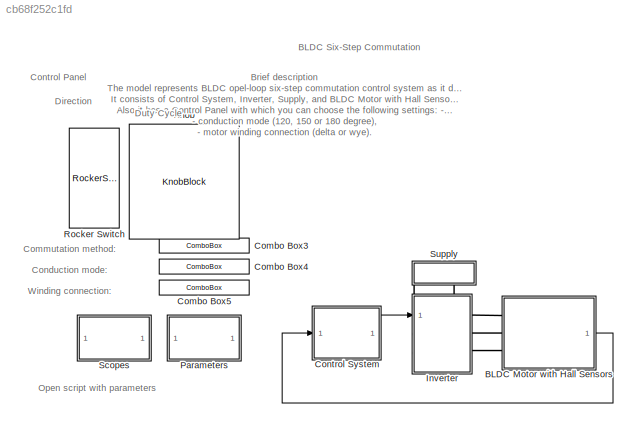
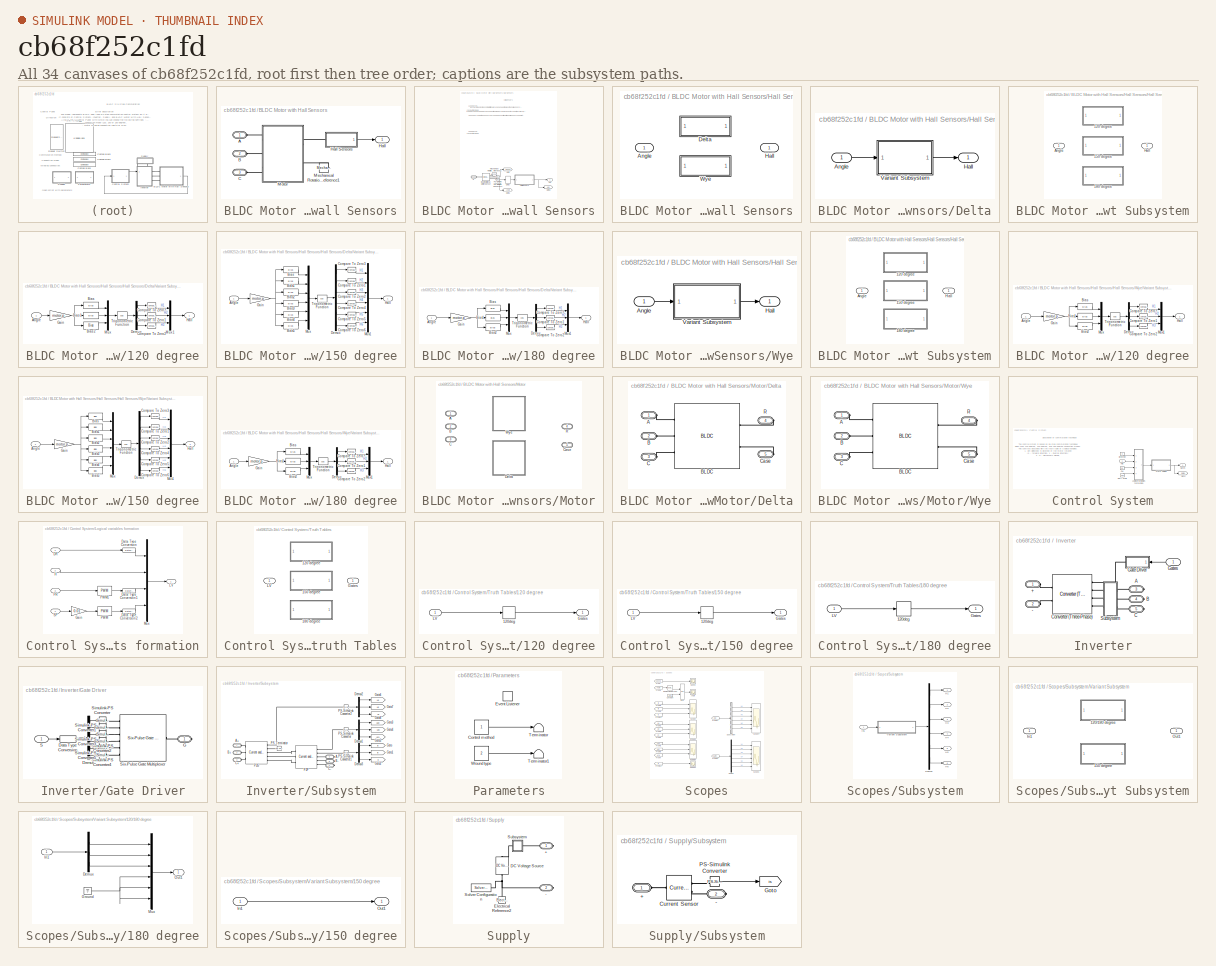
[diagram: thumbnail index - all 34 canvases of the model, root first then tree order]
MODEL slx_cb68f252c1fd
KIND model
CONFIG AbsTol = auto
CONFIG EnableMultiTasking = off
CONFIG FixedStep = auto
CONFIG InitFcn = modelData;
CONFIG MaxStep = auto
CONFIG MinStep = auto
CONFIG RelTol = 1e-3
CONFIG SampleTimeConstraint = Unconstrained
CONFIG SolverName = VariableStepAuto
CONFIG StartTime = 0.0
CONFIG StopTime = 0.3
BLOCK [SubSystem] BLDC Motor with Hall Sensors
  Ports = [0, 1, 0, 0, 0, 3]
  RequestExecContextInheritance = off
BLOCK [PMIOPort] BLDC Motor with Hall Sensors/A
  Side = Left
BLOCK [PMIOPort] BLDC Motor with Hall Sensors/B
  Port = 2
  Side = Left
BLOCK [PMIOPort] BLDC Motor with Hall Sensors/C
  Port = 3
  Side = Left
BLOCK [Outport] BLDC Motor with Hall Sensors/Hall
BLOCK [SubSystem] BLDC Motor with Hall Sensors/Hall Sensors
  Ports = [0, 1, 0, 0, 0, 1]
  RequestExecContextInheritance = off
BLOCK [Delay] BLDC Motor with Hall Sensors/Hall Sensors/Delay
  DelayLength = 1
  InputPortMap = u0
  Ports = [1, 1]
BLOCK [Goto] BLDC Motor with Hall Sensors/Hall Sensors/Goto
  GotoTag = Speed
  TagVisibility = global
BLOCK [Goto] BLDC Motor with Hall Sensors/Hall Sensors/Goto1
  GotoTag = Angle
  TagVisibility = global
BLOCK [Goto] BLDC Motor with Hall Sensors/Hall Sensors/Goto2
  GotoTag = Hall
  TagVisibility = global
BLOCK [Outport] BLDC Motor with Hall Sensors/Hall Sensors/Hall
BLOCK [SubSystem] BLDC Motor with Hall Sensors/Hall Sensors/Hall Sensors
  Ports = [1, 1]
  RequestExecContextInheritance = off
  Variant = on
BLOCK [Inport] BLDC Motor with Hall Sensors/Hall Sensors/Hall Sensors/Angle
BLOCK [SubSystem] BLDC Motor with Hall Sensors/Hall Sensors/Hall Sensors/Delta
  Ports = [1, 1]
  RequestExecContextInheritance = off
  VariantControl = DELTA_WOUND
BLOCK [Inport] BLDC Motor with Hall Sensors/Hall Sensors/Hall Sensors/Delta/Angle
BLOCK [Outport] BLDC Motor with Hall Sensors/Hall Sensors/Hall Sensors/Delta/Hall
BLOCK [SubSystem] BLDC Motor with Hall Sensors/Hall Sensors/Hall Sensors/Delta/Variant Subsystem
  Ports = [1, 1]
  RequestExecContextInheritance = off
  Variant = on
BLOCK [SubSystem] BLDC Motor with Hall Sensors/Hall Sensors/Hall Sensors/Delta/Variant Subsystem/120 degree
  Ports = [1, 1]
  RequestExecContextInheritance = off
  VariantControl = DEG120
BLOCK [Inport] BLDC Motor with Hall Sensors/Hall Sensors/Hall Sensors/Delta/Variant Subsystem/120 degree/Angle
BLOCK [Bias] BLDC Motor with Hall Sensors/Hall Sensors/Hall Sensors/Delta/Variant Subsystem/120 degree/Bias
  Bias = -pi/6
  SaturateOnIntegerOverflow = off
BLOCK [Bias] BLDC Motor with Hall Sensors/Hall Sensors/Hall Sensors/Delta/Variant Subsystem/120 degree/Bias1
  Bias = pi/2
  SaturateOnIntegerOverflow = off
BLOCK [Bias] BLDC Motor with Hall Sensors/Hall Sensors/Hall Sensors/Delta/Variant Subsystem/120 degree/Bias2
  Bias = -5*pi/6
  SaturateOnIntegerOverflow = off
BLOCK [Reference] BLDC Motor with Hall Sensors/Hall Sensors/Hall Sensors/Delta/Variant Subsystem/120 degree/Compare To Zero1  REF=simulink/Logic and Bit
Operations/Compare
To Zero
  Ports = [1, 1]
  SourceBlock = simulink/Logic and Bit\nOperations/Compare\nTo Zero
  SourceProductBaseCode = SL
  SourceType = Compare To Zero
BLOCK [Reference] BLDC Motor with Hall Sensors/Hall Sensors/Hall Sensors/Delta/Variant Subsystem/120 degree/Compare To Zero2  REF=simulink/Logic and Bit
Operations/Compare
To Zero
  Ports = [1, 1]
  SourceBlock = simulink/Logic and Bit\nOperations/Compare\nTo Zero
  SourceProductBaseCode = SL
  SourceType = Compare To Zero
BLOCK [Reference] BLDC Motor with Hall Sensors/Hall Sensors/Hall Sensors/Delta/Variant Subsystem/120 degree/Compare To Zero3  REF=simulink/Logic and Bit
Operations/Compare
To Zero
  Ports = [1, 1]
  SourceBlock = simulink/Logic and Bit\nOperations/Compare\nTo Zero
  SourceProductBaseCode = SL
  SourceType = Compare To Zero
BLOCK [Demux] BLDC Motor with Hall Sensors/Hall Sensors/Hall Sensors/Delta/Variant Subsystem/120 degree/Demux
  Outputs = 3
  Ports = [1, 3]
BLOCK [Gain] BLDC Motor with Hall Sensors/Hall Sensors/Hall Sensors/Delta/Variant Subsystem/120 degree/Gain
  Gain = motor.p
BLOCK [Outport] BLDC Motor with Hall Sensors/Hall Sensors/Hall Sensors/Delta/Variant Subsystem/120 degree/Hall
BLOCK [Mux] BLDC Motor with Hall Sensors/Hall Sensors/Hall Sensors/Delta/Variant Subsystem/120 degree/Mux
  DisplayOption = bar
  Inputs = 3
  Ports = [3, 1]
BLOCK [Mux] BLDC Motor with Hall Sensors/Hall Sensors/Hall Sensors/Delta/Variant Subsystem/120 degree/Mux1
  DisplayOption = bar
  Inputs = 3
  Ports = [3, 1]
BLOCK [Trigonometry] BLDC Motor with Hall Sensors/Hall Sensors/Hall Sensors/Delta/Variant Subsystem/120 degree/Trigonometric Function
  Operator = cos
  Ports = [1, 1]
BLOCK [SubSystem] BLDC Motor with Hall Sensors/Hall Sensors/Hall Sensors/Delta/Variant Subsystem/150 degree
  Ports = [1, 1]
  RequestExecContextInheritance = off
  VariantControl = DEG150
BLOCK [Inport] BLDC Motor with Hall Sensors/Hall Sensors/Hall Sensors/Delta/Variant Subsystem/150 degree/Angle
BLOCK [Bias] BLDC Motor with Hall Sensors/Hall Sensors/Hall Sensors/Delta/Variant Subsystem/150 degree/Bias
  Bias = pi/6
  SaturateOnIntegerOverflow = off
BLOCK [Bias] BLDC Motor with Hall Sensors/Hall Sensors/Hall Sensors/Delta/Variant Subsystem/150 degree/Bias1
  SaturateOnIntegerOverflow = off
BLOCK [Bias] BLDC Motor with Hall Sensors/Hall Sensors/Hall Sensors/Delta/Variant Subsystem/150 degree/Bias2
  Bias = -pi/6
  SaturateOnIntegerOverflow = off
BLOCK [Bias] BLDC Motor with Hall Sensors/Hall Sensors/Hall Sensors/Delta/Variant Subsystem/150 degree/Bias3
  Bias = -pi/3
  SaturateOnIntegerOverflow = off
BLOCK [Bias] BLDC Motor with Hall Sensors/Hall Sensors/Hall Sensors/Delta/Variant Subsystem/150 degree/Bias4
  Bias = -pi/2
  SaturateOnIntegerOverflow = off
BLOCK [Bias] BLDC Motor with Hall Sensors/Hall Sensors/Hall Sensors/Delta/Variant Subsystem/150 degree/Bias5
  Bias = -2*pi/3
  SaturateOnIntegerOverflow = off
BLOCK [Reference] BLDC Motor with Hall Sensors/Hall Sensors/Hall Sensors/Delta/Variant Subsystem/150 degree/Compare To Zero1  REF=simulink/Logic and Bit
Operations/Compare
To Zero
  Ports = [1, 1]
  SourceBlock = simulink/Logic and Bit\nOperations/Compare\nTo Zero
  SourceProductBaseCode = SL
  SourceType = Compare To Zero
BLOCK [Reference] BLDC Motor with Hall Sensors/Hall Sensors/Hall Sensors/Delta/Variant Subsystem/150 degree/Compare To Zero2  REF=simulink/Logic and Bit
Operations/Compare
To Zero
  Ports = [1, 1]
  SourceBlock = simulink/Logic and Bit\nOperations/Compare\nTo Zero
  SourceProductBaseCode = SL
  SourceType = Compare To Zero
BLOCK [Reference] BLDC Motor with Hall Sensors/Hall Sensors/Hall Sensors/Delta/Variant Subsystem/150 degree/Compare To Zero3  REF=simulink/Logic and Bit
Operations/Compare
To Zero
  Ports = [1, 1]
  SourceBlock = simulink/Logic and Bit\nOperations/Compare\nTo Zero
  SourceProductBaseCode = SL
  SourceType = Compare To Zero
BLOCK [Reference] BLDC Motor with Hall Sensors/Hall Sensors/Hall Sensors/Delta/Variant Subsystem/150 degree/Compare To Zero4  REF=simulink/Logic and Bit
Operations/Compare
To Zero
  Ports = [1, 1]
  SourceBlock = simulink/Logic and Bit\nOperations/Compare\nTo Zero
  SourceProductBaseCode = SL
  SourceType = Compare To Zero
BLOCK [Reference] BLDC Motor with Hall Sensors/Hall Sensors/Hall Sensors/Delta/Variant Subsystem/150 degree/Compare To Zero5  REF=simulink/Logic and Bit
Operations/Compare
To Zero
  Ports = [1, 1]
  SourceBlock = simulink/Logic and Bit\nOperations/Compare\nTo Zero
  SourceProductBaseCode = SL
  SourceType = Compare To Zero
BLOCK [Reference] BLDC Motor with Hall Sensors/Hall Sensors/Hall Sensors/Delta/Variant Subsystem/150 degree/Compare To Zero6  REF=simulink/Logic and Bit
Operations/Compare
To Zero
  Ports = [1, 1]
  SourceBlock = simulink/Logic and Bit\nOperations/Compare\nTo Zero
  SourceProductBaseCode = SL
  SourceType = Compare To Zero
BLOCK [Demux] BLDC Motor with Hall Sensors/Hall Sensors/Hall Sensors/Delta/Variant Subsystem/150 degree/Demux
  Outputs = 6
  Ports = [1, 6]
BLOCK [Gain] BLDC Motor with Hall Sensors/Hall Sensors/Hall Sensors/Delta/Variant Subsystem/150 degree/Gain
  Gain = motor.p
BLOCK [Outport] BLDC Motor with Hall Sensors/Hall Sensors/Hall Sensors/Delta/Variant Subsystem/150 degree/Hall
BLOCK [Mux] BLDC Motor with Hall Sensors/Hall Sensors/Hall Sensors/Delta/Variant Subsystem/150 degree/Mux
  DisplayOption = bar
  Inputs = 6
  Ports = [6, 1]
BLOCK [Mux] BLDC Motor with Hall Sensors/Hall Sensors/Hall Sensors/Delta/Variant Subsystem/150 degree/Mux1
  DisplayOption = bar
  Inputs = 6
  Ports = [6, 1]
BLOCK [Trigonometry] BLDC Motor with Hall Sensors/Hall Sensors/Hall Sensors/Delta/Variant Subsystem/150 degree/Trigonometric Function
  Operator = cos
  Ports = [1, 1]
BLOCK [SubSystem] BLDC Motor with Hall Sensors/Hall Sensors/Hall Sensors/Delta/Variant Subsystem/180 degree
  Ports = [1, 1]
  RequestExecContextInheritance = off
  VariantControl = DEG180
BLOCK [Inport] BLDC Motor with Hall Sensors/Hall Sensors/Hall Sensors/Delta/Variant Subsystem/180 degree/Angle
BLOCK [Bias] BLDC Motor with Hall Sensors/Hall Sensors/Hall Sensors/Delta/Variant Subsystem/180 degree/Bias
  Bias = -pi/3
  SaturateOnIntegerOverflow = off
BLOCK [Bias] BLDC Motor with Hall Sensors/Hall Sensors/Hall Sensors/Delta/Variant Subsystem/180 degree/Bias1
  Bias = pi/3
  SaturateOnIntegerOverflow = off
BLOCK [Bias] BLDC Motor with Hall Sensors/Hall Sensors/Hall Sensors/Delta/Variant Subsystem/180 degree/Bias2
  Bias = -pi
  SaturateOnIntegerOverflow = off
BLOCK [Reference] BLDC Motor with Hall Sensors/Hall Sensors/Hall Sensors/Delta/Variant Subsystem/180 degree/Compare To Zero1  REF=simulink/Logic and Bit
Operations/Compare
To Zero
  Ports = [1, 1]
  SourceBlock = simulink/Logic and Bit\nOperations/Compare\nTo Zero
  SourceProductBaseCode = SL
  SourceType = Compare To Zero
BLOCK [Reference] BLDC Motor with Hall Sensors/Hall Sensors/Hall Sensors/Delta/Variant Subsystem/180 degree/Compare To Zero2  REF=simulink/Logic and Bit
Operations/Compare
To Zero
  Ports = [1, 1]
  SourceBlock = simulink/Logic and Bit\nOperations/Compare\nTo Zero
  SourceProductBaseCode = SL
  SourceType = Compare To Zero
BLOCK [Reference] BLDC Motor with Hall Sensors/Hall Sensors/Hall Sensors/Delta/Variant Subsystem/180 degree/Compare To Zero3  REF=simulink/Logic and Bit
Operations/Compare
To Zero
  Ports = [1, 1]
  SourceBlock = simulink/Logic and Bit\nOperations/Compare\nTo Zero
  SourceProductBaseCode = SL
  SourceType = Compare To Zero
BLOCK [Demux] BLDC Motor with Hall Sensors/Hall Sensors/Hall Sensors/Delta/Variant Subsystem/180 degree/Demux
  Outputs = 3
  Ports = [1, 3]
BLOCK [Gain] BLDC Motor with Hall Sensors/Hall Sensors/Hall Sensors/Delta/Variant Subsystem/180 degree/Gain
  Gain = motor.p
BLOCK [Outport] BLDC Motor with Hall Sensors/Hall Sensors/Hall Sensors/Delta/Variant Subsystem/180 degree/Hall
BLOCK [Mux] BLDC Motor with Hall Sensors/Hall Sensors/Hall Sensors/Delta/Variant Subsystem/180 degree/Mux
  DisplayOption = bar
  Inputs = 3
  Ports = [3, 1]
BLOCK [Mux] BLDC Motor with Hall Sensors/Hall Sensors/Hall Sensors/Delta/Variant Subsystem/180 degree/Mux1
  DisplayOption = bar
  Inputs = 3
  Ports = [3, 1]
BLOCK [Trigonometry] BLDC Motor with Hall Sensors/Hall Sensors/Hall Sensors/Delta/Variant Subsystem/180 degree/Trigonometric Function
  Operator = cos
  Ports = [1, 1]
BLOCK [Inport] BLDC Motor with Hall Sensors/Hall Sensors/Hall Sensors/Delta/Variant Subsystem/Angle
BLOCK [Outport] BLDC Motor with Hall Sensors/Hall Sensors/Hall Sensors/Delta/Variant Subsystem/Hall
BLOCK [Outport] BLDC Motor with Hall Sensors/Hall Sensors/Hall Sensors/Hall
BLOCK [SubSystem] BLDC Motor with Hall Sensors/Hall Sensors/Hall Sensors/Wye
  Ports = [1, 1]
  RequestExecContextInheritance = off
  VariantControl = WYE_WOUND
BLOCK [Inport] BLDC Motor with Hall Sensors/Hall Sensors/Hall Sensors/Wye/Angle
BLOCK [Outport] BLDC Motor with Hall Sensors/Hall Sensors/Hall Sensors/Wye/Hall
BLOCK [SubSystem] BLDC Motor with Hall Sensors/Hall Sensors/Hall Sensors/Wye/Variant Subsystem
  Ports = [1, 1]
  RequestExecContextInheritance = off
  Variant = on
BLOCK [SubSystem] BLDC Motor with Hall Sensors/Hall Sensors/Hall Sensors/Wye/Variant Subsystem/120 degree
  Ports = [1, 1]
  RequestExecContextInheritance = off
  VariantControl = DEG120
BLOCK [Inport] BLDC Motor with Hall Sensors/Hall Sensors/Hall Sensors/Wye/Variant Subsystem/120 degree/Angle
BLOCK [Bias] BLDC Motor with Hall Sensors/Hall Sensors/Hall Sensors/Wye/Variant Subsystem/120 degree/Bias
  SaturateOnIntegerOverflow = off
BLOCK [Bias] BLDC Motor with Hall Sensors/Hall Sensors/Hall Sensors/Wye/Variant Subsystem/120 degree/Bias1
  Bias = 2*pi/3
  SaturateOnIntegerOverflow = off
BLOCK [Bias] BLDC Motor with Hall Sensors/Hall Sensors/Hall Sensors/Wye/Variant Subsystem/120 degree/Bias2
  Bias = -2*pi/3
  SaturateOnIntegerOverflow = off
BLOCK [Reference] BLDC Motor with Hall Sensors/Hall Sensors/Hall Sensors/Wye/Variant Subsystem/120 degree/Compare To Zero1  REF=simulink/Logic and Bit
Operations/Compare
To Zero
  Ports = [1, 1]
  SourceBlock = simulink/Logic and Bit\nOperations/Compare\nTo Zero
  SourceProductBaseCode = SL
  SourceType = Compare To Zero
BLOCK [Reference] BLDC Motor with Hall Sensors/Hall Sensors/Hall Sensors/Wye/Variant Subsystem/120 degree/Compare To Zero2  REF=simulink/Logic and Bit
Operations/Compare
To Zero
  Ports = [1, 1]
  SourceBlock = simulink/Logic and Bit\nOperations/Compare\nTo Zero
  SourceProductBaseCode = SL
  SourceType = Compare To Zero
BLOCK [Reference] BLDC Motor with Hall Sensors/Hall Sensors/Hall Sensors/Wye/Variant Subsystem/120 degree/Compare To Zero3  REF=simulink/Logic and Bit
Operations/Compare
To Zero
  Ports = [1, 1]
  SourceBlock = simulink/Logic and Bit\nOperations/Compare\nTo Zero
  SourceProductBaseCode = SL
  SourceType = Compare To Zero
BLOCK [Demux] BLDC Motor with Hall Sensors/Hall Sensors/Hall Sensors/Wye/Variant Subsystem/120 degree/Demux
  Outputs = 3
  Ports = [1, 3]
BLOCK [Gain] BLDC Motor with Hall Sensors/Hall Sensors/Hall Sensors/Wye/Variant Subsystem/120 degree/Gain
  Gain = motor.p
BLOCK [Outport] BLDC Motor with Hall Sensors/Hall Sensors/Hall Sensors/Wye/Variant Subsystem/120 degree/Hall
BLOCK [Mux] BLDC Motor with Hall Sensors/Hall Sensors/Hall Sensors/Wye/Variant Subsystem/120 degree/Mux
  DisplayOption = bar
  Inputs = 3
  Ports = [3, 1]
BLOCK [Mux] BLDC Motor with Hall Sensors/Hall Sensors/Hall Sensors/Wye/Variant Subsystem/120 degree/Mux1
  DisplayOption = bar
  Inputs = 3
  Ports = [3, 1]
BLOCK [Trigonometry] BLDC Motor with Hall Sensors/Hall Sensors/Hall Sensors/Wye/Variant Subsystem/120 degree/Trigonometric Function
  Operator = cos
  Ports = [1, 1]
BLOCK [SubSystem] BLDC Motor with Hall Sensors/Hall Sensors/Hall Sensors/Wye/Variant Subsystem/150 degree
  Ports = [1, 1]
  RequestExecContextInheritance = off
  VariantControl = DEG150
BLOCK [Inport] BLDC Motor with Hall Sensors/Hall Sensors/Hall Sensors/Wye/Variant Subsystem/150 degree/Angle
BLOCK [Bias] BLDC Motor with Hall Sensors/Hall Sensors/Hall Sensors/Wye/Variant Subsystem/150 degree/Bias
  Bias = pi/3
  SaturateOnIntegerOverflow = off
BLOCK [Bias] BLDC Motor with Hall Sensors/Hall Sensors/Hall Sensors/Wye/Variant Subsystem/150 degree/Bias1
  Bias = pi/6
  SaturateOnIntegerOverflow = off
BLOCK [Bias] BLDC Motor with Hall Sensors/Hall Sensors/Hall Sensors/Wye/Variant Subsystem/150 degree/Bias2
  SaturateOnIntegerOverflow = off
BLOCK [Bias] BLDC Motor with Hall Sensors/Hall Sensors/Hall Sensors/Wye/Variant Subsystem/150 degree/Bias3
  Bias = -pi/6
  SaturateOnIntegerOverflow = off
BLOCK [Bias] BLDC Motor with Hall Sensors/Hall Sensors/Hall Sensors/Wye/Variant Subsystem/150 degree/Bias4
  Bias = -pi/3
  SaturateOnIntegerOverflow = off
BLOCK [Bias] BLDC Motor with Hall Sensors/Hall Sensors/Hall Sensors/Wye/Variant Subsystem/150 degree/Bias5
  Bias = -pi/2
  SaturateOnIntegerOverflow = off
BLOCK [Reference] BLDC Motor with Hall Sensors/Hall Sensors/Hall Sensors/Wye/Variant Subsystem/150 degree/Compare To Zero1  REF=simulink/Logic and Bit
Operations/Compare
To Zero
  Ports = [1, 1]
  SourceBlock = simulink/Logic and Bit\nOperations/Compare\nTo Zero
  SourceProductBaseCode = SL
  SourceType = Compare To Zero
BLOCK [Reference] BLDC Motor with Hall Sensors/Hall Sensors/Hall Sensors/Wye/Variant Subsystem/150 degree/Compare To Zero2  REF=simulink/Logic and Bit
Operations/Compare
To Zero
  Ports = [1, 1]
  SourceBlock = simulink/Logic and Bit\nOperations/Compare\nTo Zero
  SourceProductBaseCode = SL
  SourceType = Compare To Zero
BLOCK [Reference] BLDC Motor with Hall Sensors/Hall Sensors/Hall Sensors/Wye/Variant Subsystem/150 degree/Compare To Zero3  REF=simulink/Logic and Bit
Operations/Compare
To Zero
  Ports = [1, 1]
  SourceBlock = simulink/Logic and Bit\nOperations/Compare\nTo Zero
  SourceProductBaseCode = SL
  SourceType = Compare To Zero
BLOCK [Reference] BLDC Motor with Hall Sensors/Hall Sensors/Hall Sensors/Wye/Variant Subsystem/150 degree/Compare To Zero4  REF=simulink/Logic and Bit
Operations/Compare
To Zero
  Ports = [1, 1]
  SourceBlock = simulink/Logic and Bit\nOperations/Compare\nTo Zero
  SourceProductBaseCode = SL
  SourceType = Compare To Zero
BLOCK [Reference] BLDC Motor with Hall Sensors/Hall Sensors/Hall Sensors/Wye/Variant Subsystem/150 degree/Compare To Zero5  REF=simulink/Logic and Bit
Operations/Compare
To Zero
  Ports = [1, 1]
  SourceBlock = simulink/Logic and Bit\nOperations/Compare\nTo Zero
  SourceProductBaseCode = SL
  SourceType = Compare To Zero
BLOCK [Reference] BLDC Motor with Hall Sensors/Hall Sensors/Hall Sensors/Wye/Variant Subsystem/150 degree/Compare To Zero6  REF=simulink/Logic and Bit
Operations/Compare
To Zero
  Ports = [1, 1]
  SourceBlock = simulink/Logic and Bit\nOperations/Compare\nTo Zero
  SourceProductBaseCode = SL
  SourceType = Compare To Zero
BLOCK [Demux] BLDC Motor with Hall Sensors/Hall Sensors/Hall Sensors/Wye/Variant Subsystem/150 degree/Demux
  Outputs = 6
  Ports = [1, 6]
BLOCK [Gain] BLDC Motor with Hall Sensors/Hall Sensors/Hall Sensors/Wye/Variant Subsystem/150 degree/Gain
  Gain = motor.p
BLOCK [Outport] BLDC Motor with Hall Sensors/Hall Sensors/Hall Sensors/Wye/Variant Subsystem/150 degree/Hall
BLOCK [Mux] BLDC Motor with Hall Sensors/Hall Sensors/Hall Sensors/Wye/Variant Subsystem/150 degree/Mux
  DisplayOption = bar
  Inputs = 6
  Ports = [6, 1]
BLOCK [Mux] BLDC Motor with Hall Sensors/Hall Sensors/Hall Sensors/Wye/Variant Subsystem/150 degree/Mux1
  DisplayOption = bar
  Inputs = 6
  Ports = [6, 1]
BLOCK [Trigonometry] BLDC Motor with Hall Sensors/Hall Sensors/Hall Sensors/Wye/Variant Subsystem/150 degree/Trigonometric Function
  Operator = cos
  Ports = [1, 1]
BLOCK [SubSystem] BLDC Motor with Hall Sensors/Hall Sensors/Hall Sensors/Wye/Variant Subsystem/180 degree
  Ports = [1, 1]
  RequestExecContextInheritance = off
  VariantControl = DEG180
BLOCK [Inport] BLDC Motor with Hall Sensors/Hall Sensors/Hall Sensors/Wye/Variant Subsystem/180 degree/Angle
BLOCK [Bias] BLDC Motor with Hall Sensors/Hall Sensors/Hall Sensors/Wye/Variant Subsystem/180 degree/Bias
  Bias = -pi/6
  SaturateOnIntegerOverflow = off
BLOCK [Bias] BLDC Motor with Hall Sensors/Hall Sensors/Hall Sensors/Wye/Variant Subsystem/180 degree/Bias1
  Bias = pi/2
  SaturateOnIntegerOverflow = off
BLOCK [Bias] BLDC Motor with Hall Sensors/Hall Sensors/Hall Sensors/Wye/Variant Subsystem/180 degree/Bias2
  Bias = -5*pi/6
  SaturateOnIntegerOverflow = off
BLOCK [Reference] BLDC Motor with Hall Sensors/Hall Sensors/Hall Sensors/Wye/Variant Subsystem/180 degree/Compare To Zero1  REF=simulink/Logic and Bit
Operations/Compare
To Zero
  Ports = [1, 1]
  SourceBlock = simulink/Logic and Bit\nOperations/Compare\nTo Zero
  SourceProductBaseCode = SL
  SourceType = Compare To Zero
BLOCK [Reference] BLDC Motor with Hall Sensors/Hall Sensors/Hall Sensors/Wye/Variant Subsystem/180 degree/Compare To Zero2  REF=simulink/Logic and Bit
Operations/Compare
To Zero
  Ports = [1, 1]
  SourceBlock = simulink/Logic and Bit\nOperations/Compare\nTo Zero
  SourceProductBaseCode = SL
  SourceType = Compare To Zero
BLOCK [Reference] BLDC Motor with Hall Sensors/Hall Sensors/Hall Sensors/Wye/Variant Subsystem/180 degree/Compare To Zero3  REF=simulink/Logic and Bit
Operations/Compare
To Zero
  Ports = [1, 1]
  SourceBlock = simulink/Logic and Bit\nOperations/Compare\nTo Zero
  SourceProductBaseCode = SL
  SourceType = Compare To Zero
BLOCK [Demux] BLDC Motor with Hall Sensors/Hall Sensors/Hall Sensors/Wye/Variant Subsystem/180 degree/Demux
  Outputs = 3
  Ports = [1, 3]
BLOCK [Gain] BLDC Motor with Hall Sensors/Hall Sensors/Hall Sensors/Wye/Variant Subsystem/180 degree/Gain
  Gain = motor.p
BLOCK [Outport] BLDC Motor with Hall Sensors/Hall Sensors/Hall Sensors/Wye/Variant Subsystem/180 degree/Hall
BLOCK [Mux] BLDC Motor with Hall Sensors/Hall Sensors/Hall Sensors/Wye/Variant Subsystem/180 degree/Mux
  DisplayOption = bar
  Inputs = 3
  Ports = [3, 1]
BLOCK [Mux] BLDC Motor with Hall Sensors/Hall Sensors/Hall Sensors/Wye/Variant Subsystem/180 degree/Mux1
  DisplayOption = bar
  Inputs = 3
  Ports = [3, 1]
BLOCK [Trigonometry] BLDC Motor with Hall Sensors/Hall Sensors/Hall Sensors/Wye/Variant Subsystem/180 degree/Trigonometric Function
  Operator = cos
  Ports = [1, 1]
BLOCK [Inport] BLDC Motor with Hall Sensors/Hall Sensors/Hall Sensors/Wye/Variant Subsystem/Angle
BLOCK [Outport] BLDC Motor with Hall Sensors/Hall Sensors/Hall Sensors/Wye/Variant Subsystem/Hall
BLOCK [Reference] BLDC Motor with Hall Sensors/Hall Sensors/Ideal Rotational Motion Sensor  REF=fl_lib/Mechanical/Mechanical Sensors/Ideal Rotational
Motion Sensor
  Ports = [0, 0, 0, 0, 0, 1, 3]
  SourceBlock = fl_lib/Mechanical/Mechanical Sensors/Ideal Rotational\nMotion Sensor
  SourceProductBaseCode = SS
  SourceType = Ideal Rotational\nMotion Sensor
BLOCK [Reference] BLDC Motor with Hall Sensors/Hall Sensors/Mechanical Rotational Reference1  REF=fl_lib/Mechanical/Rotational Elements/Mechanical
Rotational Reference
  NameLocation = top
  Ports = [0, 0, 0, 0, 0, 1]
  SourceBlock = fl_lib/Mechanical/Rotational Elements/Mechanical\nRotational Reference
  SourceProductBaseCode = SS
  SourceType = Mechanical\nRotational Reference
BLOCK [Reference] BLDC Motor with Hall Sensors/Hall Sensors/PS-Simulink Converter  REF=nesl_utility/PS-Simulink
Converter
  Ports = [0, 1, 0, 0, 0, 1]
  SourceBlock = nesl_utility/PS-Simulink\nConverter
  SourceProductBaseCode = PW,SS
  SourceType = PS-Simulink\nConverter
BLOCK [Reference] BLDC Motor with Hall Sensors/Hall Sensors/PS-Simulink Converter2  REF=nesl_utility/PS-Simulink
Converter
  Ports = [0, 1, 0, 0, 0, 1]
  SourceBlock = nesl_utility/PS-Simulink\nConverter
  SourceProductBaseCode = PW,SS
  SourceType = PS-Simulink\nConverter
BLOCK [PMIOPort] BLDC Motor with Hall Sensors/Hall Sensors/R
  Side = Left
BLOCK [Reference] BLDC Motor with Hall Sensors/Mechanical Rotational Reference1  REF=fl_lib/Mechanical/Rotational Elements/Mechanical
Rotational Reference
  NameLocation = top
  Ports = [0, 0, 0, 0, 0, 1]
  SourceBlock = fl_lib/Mechanical/Rotational Elements/Mechanical\nRotational Reference
  SourceProductBaseCode = SS
  SourceType = Mechanical\nRotational Reference
BLOCK [SubSystem] BLDC Motor with Hall Sensors/Motor
  Ports = [0, 0, 0, 0, 0, 3, 2]
  RequestExecContextInheritance = off
  Variant = on
BLOCK [PMIOPort] BLDC Motor with Hall Sensors/Motor/A
  Side = Left
BLOCK [PMIOPort] BLDC Motor with Hall Sensors/Motor/B
  Port = 2
  Side = Left
BLOCK [PMIOPort] BLDC Motor with Hall Sensors/Motor/C
  Port = 3
  Side = Left
BLOCK [SubSystem] BLDC Motor with Hall Sensors/Motor/Delta
  Ports = [0, 0, 0, 0, 0, 3, 2]
  RequestExecContextInheritance = off
  VariantControl = DELTA_WOUND
BLOCK [PMIOPort] BLDC Motor with Hall Sensors/Motor/Delta/A
  Side = Left
BLOCK [PMIOPort] BLDC Motor with Hall Sensors/Motor/Delta/B
  Port = 2
  Side = Left
BLOCK [Reference] BLDC Motor with Hall Sensors/Motor/Delta/BLDC  REF=ee_lib/Electromechanical/Permanent Magnet/BLDC
  Ports = [0, 0, 0, 0, 0, 3, 2]
  SourceBlock = ee_lib/Electromechanical/Permanent Magnet/BLDC
  SourceProductBaseCode = PS
  SourceType = BLDC
BLOCK [PMIOPort] BLDC Motor with Hall Sensors/Motor/Delta/C
  Port = 3
  Side = Left
BLOCK [PMIOPort] BLDC Motor with Hall Sensors/Motor/Delta/R
  Port = 4
  Side = Right
BLOCK [PMIOPort] BLDC Motor with Hall Sensors/Motor/Delta/Сase
  Port = 5
  Side = Right
BLOCK [PMIOPort] BLDC Motor with Hall Sensors/Motor/R
  Port = 4
  Side = Right
BLOCK [SubSystem] BLDC Motor with Hall Sensors/Motor/Wye
  Ports = [0, 0, 0, 0, 0, 3, 2]
  RequestExecContextInheritance = off
  VariantControl = WYE_WOUND
BLOCK [PMIOPort] BLDC Motor with Hall Sensors/Motor/Wye/A
  Side = Left
BLOCK [PMIOPort] BLDC Motor with Hall Sensors/Motor/Wye/B
  Port = 2
  Side = Left
BLOCK [Reference] BLDC Motor with Hall Sensors/Motor/Wye/BLDC  REF=ee_lib/Electromechanical/Permanent Magnet/BLDC
  Ports = [0, 0, 0, 0, 0, 3, 2]
  SourceBlock = ee_lib/Electromechanical/Permanent Magnet/BLDC
  SourceProductBaseCode = PS
  SourceType = BLDC
BLOCK [PMIOPort] BLDC Motor with Hall Sensors/Motor/Wye/C
  Port = 3
  Side = Left
BLOCK [PMIOPort] BLDC Motor with Hall Sensors/Motor/Wye/R
  Port = 4
  Side = Right
BLOCK [PMIOPort] BLDC Motor with Hall Sensors/Motor/Wye/Сase
  Port = 5
  Side = Right
BLOCK [PMIOPort] BLDC Motor with Hall Sensors/Motor/Сase
  Port = 5
  Side = Right
BLOCK [ComboBox] Combo Box3
  LabelPosition = Hide
  SelectedLabel = Alternative
BLOCK [ComboBox] Combo Box4
  LabelPosition = Hide
  SelectedLabel = 120 degree
BLOCK [ComboBox] Combo Box5
  LabelPosition = Hide
  SelectedLabel = Wye
BLOCK [SubSystem] Control System
  Ports = [1, 1]
  RequestExecContextInheritance = off
BLOCK [Constant] Control System/CM
  Value = 50
BLOCK [Constant] Control System/Direction
  Value = 0
BLOCK [Constant] Control System/Duty Cycle
  Value = 100
BLOCK [Outport] Control System/Gates
BLOCK [Goto] Control System/Goto
  GotoTag = Gates
  TagVisibility = global
BLOCK [Inport] Control System/Hall
BLOCK [SubSystem] Control System/Logical variables formation
  Ports = [4, 1]
  RequestExecContextInheritance = off
BLOCK [Inport] Control System/Logical variables formation/DR
BLOCK [DataTypeConversion] Control System/Logical variables formation/Data Type Conversion
  OutDataTypeStr = boolean
  RndMeth = Floor
  SaturateOnIntegerOverflow = off
BLOCK [DataTypeConversion] Control System/Logical variables formation/Data Type Conversion1
  OutDataTypeStr = boolean
  RndMeth = Floor
  SaturateOnIntegerOverflow = off
BLOCK [DataTypeConversion] Control System/Logical variables formation/Data Type Conversion2
  OutDataTypeStr = boolean
  RndMeth = Floor
  SaturateOnIntegerOverflow = off
BLOCK [Gain] Control System/Logical variables formation/Gain
  Gain = 0.01
BLOCK [Inport] Control System/Logical variables formation/H
  Port = 2
BLOCK [Outport] Control System/Logical variables formation/LV
BLOCK [Mux] Control System/Logical variables formation/Mux
  DisplayOption = bar
  Ports = [4, 1]
BLOCK [Inport] Control System/Logical variables formation/PR
  Port = 3
BLOCK [Reference] Control System/Logical variables formation/PWM  REF=simulink/Discontinuities/PWM
  DisableCoverage = on
  Ports = [1, 1]
  SourceBlock = simulink/Discontinuities/PWM
  SourceProductBaseCode = SL
  SourceType = PWM
BLOCK [Reference] Control System/Logical variables formation/PWM1  REF=simulink/Discontinuities/PWM
  DisableCoverage = on
  Ports = [1, 1]
  SourceBlock = simulink/Discontinuities/PWM
  SourceProductBaseCode = SL
  SourceType = PWM
BLOCK [Inport] Control System/Logical variables formation/SP
  Port = 4
BLOCK [SubSystem] Control System/Truth Tables
  Ports = [1, 1]
  RequestExecContextInheritance = off
  Variant = on
BLOCK [SubSystem] Control System/Truth Tables/120 degree
  Ports = [1, 1]
  RequestExecContextInheritance = off
  VariantControl = DEG120
BLOCK [CombinatorialLogic] Control System/Truth Tables/120 degree/120deg
  TruthTable = truthTable120d
BLOCK [Outport] Control System/Truth Tables/120 degree/Gates
BLOCK [Inport] Control System/Truth Tables/120 degree/LV
BLOCK [SubSystem] Control System/Truth Tables/150 degree
  Ports = [1, 1]
  RequestExecContextInheritance = off
  VariantControl = DEG150
BLOCK [CombinatorialLogic] Control System/Truth Tables/150 degree/120deg
  TruthTable = truthTable150d
BLOCK [Outport] Control System/Truth Tables/150 degree/Gates
BLOCK [Inport] Control System/Truth Tables/150 degree/LV
BLOCK [SubSystem] Control System/Truth Tables/180 degree
  Ports = [1, 1]
  RequestExecContextInheritance = off
  VariantControl = DEG180
BLOCK [CombinatorialLogic] Control System/Truth Tables/180 degree/120deg
  TruthTable = truthTable180d
BLOCK [Outport] Control System/Truth Tables/180 degree/Gates
BLOCK [Inport] Control System/Truth Tables/180 degree/LV
BLOCK [Outport] Control System/Truth Tables/Gates
BLOCK [Inport] Control System/Truth Tables/LV
BLOCK [SubSystem] Inverter
  PortSchema = {"entries":[{"content":{"sides":[{"content":{"connectorIds":["In1"]},"type":"ConnectorPlacement.EquallySpacedRectSide","uuid":"39f629fa-0bd2-4f88-acf3-917ef1f8012c"},{"content":{"connectorIds":["RConn1","RConn2","RConn3"],"side":"RIGHT"},"type":"ConnectorPlacement.EquallySpacedRectSide","uuid":"8e31936c-1fbb-4376-88bf-295b0c5638c2"},{"content":{"connectorIds":["LConn1","LConn2"],"side":"TOP"},"typ...<+565ch>
  Ports = [1, 0, 0, 0, 0, 2, 3]
  RequestExecContextInheritance = off
BLOCK [PMIOPort] Inverter/+
  Side = Left
BLOCK [PMIOPort] Inverter/-
  Port = 2
  Side = Left
BLOCK [PMIOPort] Inverter/A
  NameLocation = right
  Port = 3
  Side = Right
BLOCK [PMIOPort] Inverter/B
  NameLocation = right
  Port = 4
  Side = Right
BLOCK [PMIOPort] Inverter/C
  NameLocation = right
  Port = 5
  Side = Right
BLOCK [Reference] Inverter/Converter (Three-Phase)  REF=ee_lib/Semiconductors &
Converters/Converters/Converter
(Three-Phase)
  Ports = [0, 0, 0, 0, 0, 4, 2]
  SourceBlock = ee_lib/Semiconductors &\nConverters/Converters/Converter\n(Three-Phase)
  SourceProductBaseCode = PS
  SourceType = Converter\n(Three-Phase)
BLOCK [SubSystem] Inverter/Gate Driver
  Ports = [1, 0, 0, 0, 0, 0, 1]
  RequestExecContextInheritance = off
BLOCK [DataTypeConversion] Inverter/Gate Driver/Data Type Conversion
  OutDataTypeStr = double
  RndMeth = Floor
  SaturateOnIntegerOverflow = off
BLOCK [Demux] Inverter/Gate Driver/Demux
  Outputs = 6
  Ports = [1, 6]
BLOCK [PMIOPort] Inverter/Gate Driver/G
  Side = Right
BLOCK [Inport] Inverter/Gate Driver/S
BLOCK [Reference] Inverter/Gate Driver/Simulink-PS Converter  REF=nesl_utility/Simulink-PS
Converter
  Ports = [1, 0, 0, 0, 0, 0, 1]
  SourceBlock = nesl_utility/Simulink-PS\nConverter
  SourceProductBaseCode = PW,SS
  SourceType = Simulink-PS\nConverter
BLOCK [Reference] Inverter/Gate Driver/Simulink-PS Converter1  REF=nesl_utility/Simulink-PS
Converter
  Ports = [1, 0, 0, 0, 0, 0, 1]
  SourceBlock = nesl_utility/Simulink-PS\nConverter
  SourceProductBaseCode = PW,SS
  SourceType = Simulink-PS\nConverter
BLOCK [Reference] Inverter/Gate Driver/Simulink-PS Converter2  REF=nesl_utility/Simulink-PS
Converter
  Ports = [1, 0, 0, 0, 0, 0, 1]
  SourceBlock = nesl_utility/Simulink-PS\nConverter
  SourceProductBaseCode = PW,SS
  SourceType = Simulink-PS\nConverter
BLOCK [Reference] Inverter/Gate Driver/Simulink-PS Converter3  REF=nesl_utility/Simulink-PS
Converter
  Ports = [1, 0, 0, 0, 0, 0, 1]
  SourceBlock = nesl_utility/Simulink-PS\nConverter
  SourceProductBaseCode = PW,SS
  SourceType = Simulink-PS\nConverter
BLOCK [Reference] Inverter/Gate Driver/Simulink-PS Converter4  REF=nesl_utility/Simulink-PS
Converter
  Ports = [1, 0, 0, 0, 0, 0, 1]
  SourceBlock = nesl_utility/Simulink-PS\nConverter
  SourceProductBaseCode = PW,SS
  SourceType = Simulink-PS\nConverter
BLOCK [Reference] Inverter/Gate Driver/Simulink-PS Converter5  REF=nesl_utility/Simulink-PS
Converter
  Ports = [1, 0, 0, 0, 0, 0, 1]
  SourceBlock = nesl_utility/Simulink-PS\nConverter
  SourceProductBaseCode = PW,SS
  SourceType = Simulink-PS\nConverter
BLOCK [Reference] Inverter/Gate Driver/Six-Pulse Gate Multiplexer  REF=ee_lib/Semiconductors &
Converters/Converters/Six-Pulse Gate
Multiplexer
  Ports = [0, 0, 0, 0, 0, 6, 1]
  SourceBlock = ee_lib/Semiconductors &\nConverters/Converters/Six-Pulse Gate\nMultiplexer
  SourceProductBaseCode = PS
  SourceType = Six-Pulse Gate\nMultiplexer
BLOCK [Inport] Inverter/Gates
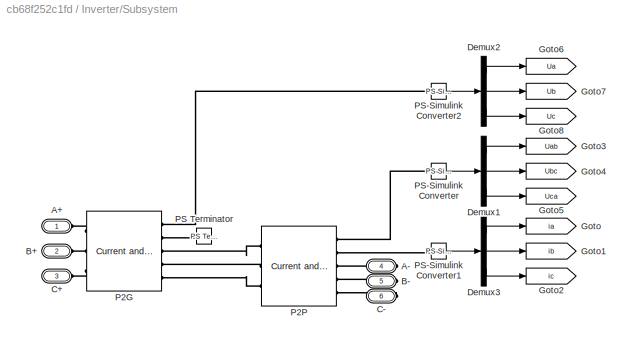
BLOCK [SubSystem] Inverter/Subsystem
  Ports = [0, 0, 0, 0, 0, 3, 3]
  RequestExecContextInheritance = off
BLOCK [PMIOPort] Inverter/Subsystem/A+
  NameLocation = left
  Side = Left
BLOCK [PMIOPort] Inverter/Subsystem/A-
  NameLocation = right
  Port = 4
  Side = Right
BLOCK [PMIOPort] Inverter/Subsystem/B+
  NameLocation = left
  Port = 2
  Side = Left
BLOCK [PMIOPort] Inverter/Subsystem/B-
  NameLocation = right
  Port = 5
  Side = Right
BLOCK [PMIOPort] Inverter/Subsystem/C+
  NameLocation = left
  Port = 3
  Side = Left
BLOCK [PMIOPort] Inverter/Subsystem/C-
  NameLocation = right
  Port = 6
  Side = Right
BLOCK [Demux] Inverter/Subsystem/Demux1
  Outputs = 3
  Ports = [1, 3]
BLOCK [Demux] Inverter/Subsystem/Demux2
  Outputs = 3
  Ports = [1, 3]
BLOCK [Demux] Inverter/Subsystem/Demux3
  Outputs = 3
  Ports = [1, 3]
BLOCK [Goto] Inverter/Subsystem/Goto
  GotoTag = ia
  TagVisibility = global
BLOCK [Goto] Inverter/Subsystem/Goto1
  GotoTag = ib
  TagVisibility = global
BLOCK [Goto] Inverter/Subsystem/Goto2
  GotoTag = ic
  TagVisibility = global
BLOCK [Goto] Inverter/Subsystem/Goto3
  GotoTag = Uab
  TagVisibility = global
BLOCK [Goto] Inverter/Subsystem/Goto4
  GotoTag = Ubc
  TagVisibility = global
BLOCK [Goto] Inverter/Subsystem/Goto5
  GotoTag = Uca
  TagVisibility = global
BLOCK [Goto] Inverter/Subsystem/Goto6
  GotoTag = Ua
  TagVisibility = global
BLOCK [Goto] Inverter/Subsystem/Goto7
  GotoTag = Ub
  TagVisibility = global
BLOCK [Goto] Inverter/Subsystem/Goto8
  GotoTag = Uc
  TagVisibility = global
BLOCK [Reference] Inverter/Subsystem/P2G  REF=ee_lib/Sensors &
Transducers/Current and Voltage
Sensor (Three-Phase)
  Ports = [0, 0, 0, 0, 0, 3, 5]
  SourceBlock = ee_lib/Sensors &\nTransducers/Current and Voltage\nSensor (Three-Phase)
  SourceProductBaseCode = PS
  SourceType = Current and Voltage\nSensor (Three-Phase)
BLOCK [Reference] Inverter/Subsystem/P2P  REF=ee_lib/Sensors &
Transducers/Current and Voltage
Sensor (Three-Phase)
  Ports = [0, 0, 0, 0, 0, 3, 5]
  SourceBlock = ee_lib/Sensors &\nTransducers/Current and Voltage\nSensor (Three-Phase)
  SourceProductBaseCode = PS
  SourceType = Current and Voltage\nSensor (Three-Phase)
BLOCK [Reference] Inverter/Subsystem/PS Terminator  REF=fl_lib/Physical Signals/Sinks/PS Terminator
  Ports = [0, 0, 0, 0, 0, 1]
  SourceBlock = fl_lib/Physical Signals/Sinks/PS Terminator
  SourceProductBaseCode = SS
  SourceType = PS Terminator
BLOCK [Reference] Inverter/Subsystem/PS-Simulink Converter  REF=nesl_utility/PS-Simulink
Converter
  Ports = [0, 1, 0, 0, 0, 1]
  SourceBlock = nesl_utility/PS-Simulink\nConverter
  SourceProductBaseCode = PW,SS
  SourceType = PS-Simulink\nConverter
BLOCK [Reference] Inverter/Subsystem/PS-Simulink Converter1  REF=nesl_utility/PS-Simulink
Converter
  Ports = [0, 1, 0, 0, 0, 1]
  SourceBlock = nesl_utility/PS-Simulink\nConverter
  SourceProductBaseCode = PW,SS
  SourceType = PS-Simulink\nConverter
BLOCK [Reference] Inverter/Subsystem/PS-Simulink Converter2  REF=nesl_utility/PS-Simulink
Converter
  Ports = [0, 1, 0, 0, 0, 1]
  SourceBlock = nesl_utility/PS-Simulink\nConverter
  SourceProductBaseCode = PW,SS
  SourceType = PS-Simulink\nConverter
BLOCK [KnobBlock] Knob
  LabelPosition = Hide
  TickInterval = 10
BLOCK [SubSystem] Parameters
  Ports = []
  RequestExecContextInheritance = off
  TreatAsAtomicUnit = on
BLOCK [Constant] Parameters/Control method
BLOCK [EventListener] Parameters/Event Listener
  DisableCoverage = on
  EventName = reset
BLOCK [Terminator] Parameters/Terminator
BLOCK [Terminator] Parameters/Terminator1
BLOCK [Constant] Parameters/Wound type
  Value = 2
BLOCK [RockerSwitchBlock] Rocker Switch
  LabelPosition = Hide
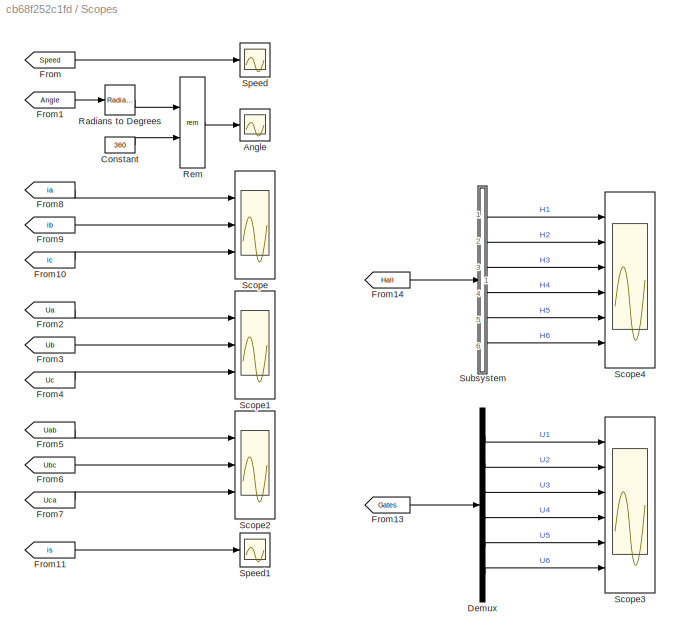
BLOCK [SubSystem] Scopes
  Ports = []
  RequestExecContextInheritance = off
BLOCK [Scope] Scopes/Angle
  Floating = off
  NumInputPorts = 1
  Ports = [1]
  ScopeSpecificationString = Simulink.scopes.TimeScopeBlockCfg('CurrentConfiguration', extmgr.ConfigurationSet(extmgr.Configuration('Core','General UI',true),extmgr.Configuration('Core','Source UI',true),extmgr.Configuration('Sources','WiredSimulink',true,'DataLoggingVariableName','ScopeData1'),extmgr.Configuration('Visuals','Time Domain',true,'SerializedDisplays',{struct('MinYLimReal','-404.99909','MaxYLimReal','44.9999','YL...<+1416ch>
BLOCK [Constant] Scopes/Constant
  Value = 360
BLOCK [Demux] Scopes/Demux
  Outputs = 6
  Ports = [1, 6]
BLOCK [From] Scopes/From
  GotoTag = Speed
  TagVisibility = global
BLOCK [From] Scopes/From1
  GotoTag = Angle
  TagVisibility = global
BLOCK [From] Scopes/From10
  GotoTag = ic
  TagVisibility = global
BLOCK [From] Scopes/From11
  GotoTag = is
  TagVisibility = global
BLOCK [From] Scopes/From13
  GotoTag = Gates
  TagVisibility = global
BLOCK [From] Scopes/From14
  GotoTag = Hall
  TagVisibility = global
BLOCK [From] Scopes/From2
  GotoTag = Ua
  TagVisibility = global
BLOCK [From] Scopes/From3
  GotoTag = Ub
  TagVisibility = global
BLOCK [From] Scopes/From4
  GotoTag = Uc
  TagVisibility = global
BLOCK [From] Scopes/From5
  GotoTag = Uab
  TagVisibility = global
BLOCK [From] Scopes/From6
  GotoTag = Ubc
  TagVisibility = global
BLOCK [From] Scopes/From7
  GotoTag = Uca
  TagVisibility = global
BLOCK [From] Scopes/From8
  GotoTag = ia
  TagVisibility = global
BLOCK [From] Scopes/From9
  GotoTag = ib
  TagVisibility = global
BLOCK [Reference] Scopes/Radians to Degrees  REF=simulink_extras/Transformations/Radians
to Degrees
  Ports = [1, 1]
  SourceBlock = simulink_extras/Transformations/Radians\nto Degrees
  SourceProductBaseCode = SL
  SourceType = RadiansToDegrees
BLOCK [Math] Scopes/Rem
  Operator = rem
  Ports = [2, 1]
BLOCK [Scope] Scopes/Scope
  Floating = off
  NumInputPorts = 3
  Ports = [3]
  ScopeSpecificationString = Simulink.scopes.TimeScopeBlockCfg('CurrentConfiguration', extmgr.ConfigurationSet(extmgr.Configuration('Core','General UI',true),extmgr.Configuration('Core','Source UI',true),extmgr.Configuration('Sources','WiredSimulink',true,'DataLoggingVariableName','ScopeData7'),extmgr.Configuration('Visuals','Time Domain',true,'SerializedDisplays',{struct('MinYLimReal','-1.84341','MaxYLimReal','1.13555','YLab...<+2796ch>
BLOCK [Scope] Scopes/Scope1
  Floating = off
  NumInputPorts = 3
  Ports = [3]
  ScopeSpecificationString = Simulink.scopes.TimeScopeBlockCfg('CurrentConfiguration', extmgr.ConfigurationSet(extmgr.Configuration('Core','General UI',true),extmgr.Configuration('Core','Source UI',true),extmgr.Configuration('Sources','WiredSimulink',true,'DataLoggingVariableName','ScopeData8'),extmgr.Configuration('Visuals','Time Domain',true,'SerializedDisplays',{struct('MinYLimReal','2.09735','MaxYLimReal','24.20934','YLab...<+2767ch>
BLOCK [Scope] Scopes/Scope2
  Floating = off
  NumInputPorts = 3
  Ports = [3]
  ScopeSpecificationString = Simulink.scopes.TimeScopeBlockCfg('CurrentConfiguration', extmgr.ConfigurationSet(extmgr.Configuration('Core','General UI',true),extmgr.Configuration('Core','Source UI',true),extmgr.Configuration('Sources','WiredSimulink',true,'DataLoggingVariableName','ScopeData9'),extmgr.Configuration('Visuals','Time Domain',true,'SerializedDisplays',{struct('MinYLimReal','-31.00847','MaxYLimReal','31.07137','YL...<+2773ch>
BLOCK [Scope] Scopes/Scope3
  Floating = off
  NumInputPorts = 6
  Ports = [6]
  ScopeSpecificationString = Simulink.scopes.TimeScopeBlockCfg('CurrentConfiguration', extmgr.ConfigurationSet(extmgr.Configuration('Core','General UI',true),extmgr.Configuration('Core','Source UI',true),extmgr.Configuration('Sources','WiredSimulink',true,'DataLoggingVariableName','ScopeData1'),extmgr.Configuration('Visuals','Time Domain',true,'SerializedDisplays',{struct('MinYLimReal','-0.125','MaxYLimReal','1.125','YLabelRe...<+4728ch>
BLOCK [Scope] Scopes/Scope4
  Floating = off
  NumInputPorts = 6
  Ports = [6]
  ScopeSpecificationString = Simulink.scopes.TimeScopeBlockCfg('CurrentConfiguration', extmgr.ConfigurationSet(extmgr.Configuration('Core','General UI',true),extmgr.Configuration('Core','Source UI',true),extmgr.Configuration('Sources','WiredSimulink',true,'DataLoggingVariableName','ScopeData1'),extmgr.Configuration('Visuals','Time Domain',true,'SerializedDisplays',{struct('MinYLimReal','-0.125','MaxYLimReal','1.125','YLabelRe...<+4782ch>
BLOCK [Scope] Scopes/Speed
  Floating = off
  NumInputPorts = 1
  Ports = [1]
  ScopeSpecificationString = Simulink.scopes.TimeScopeBlockCfg('CurrentConfiguration', extmgr.ConfigurationSet(extmgr.Configuration('Core','General UI',true),extmgr.Configuration('Core','Source UI',true),extmgr.Configuration('Sources','WiredSimulink',true),extmgr.Configuration('Visuals','Time Domain',true,'SerializedDisplays',{struct('MinYLimReal','-387.05233','MaxYLimReal','3483.47093','YLabelReal','','MinYLimMag',' 0.00000'...<+1456ch>
BLOCK [Scope] Scopes/Speed1
  Floating = off
  NumInputPorts = 1
  Ports = [1]
  ScopeSpecificationString = Simulink.scopes.TimeScopeBlockCfg('CurrentConfiguration', extmgr.ConfigurationSet(extmgr.Configuration('Core','General UI',true),extmgr.Configuration('Core','Source UI',true),extmgr.Configuration('Sources','WiredSimulink',true,'DataLoggingVariableName','ScopeData1'),extmgr.Configuration('Visuals','Time Domain',true,'SerializedDisplays',{struct('MinYLimReal','-3.28216','MaxYLimReal','15.76709','YLa...<+1483ch>
BLOCK [SubSystem] Scopes/Subsystem
  Ports = [1, 6]
  RequestExecContextInheritance = off
  ShowPortLabels = none
BLOCK [Demux] Scopes/Subsystem/Demux
  Outputs = 6
  Ports = [1, 6]
BLOCK [Outport] Scopes/Subsystem/H1
BLOCK [Outport] Scopes/Subsystem/H2
  Port = 2
BLOCK [Outport] Scopes/Subsystem/H3
  Port = 3
BLOCK [Outport] Scopes/Subsystem/H4
  Port = 4
BLOCK [Outport] Scopes/Subsystem/H5
  Port = 5
BLOCK [Outport] Scopes/Subsystem/H6
  Port = 6
BLOCK [Inport] Scopes/Subsystem/In1
BLOCK [SubSystem] Scopes/Subsystem/Variant Subsystem
  Ports = [1, 1]
  RequestExecContextInheritance = off
  Variant = on
BLOCK [SubSystem] Scopes/Subsystem/Variant Subsystem/120//180 degree
  Ports = [1, 1]
  RequestExecContextInheritance = off
  VariantControl = DEG120_180
BLOCK [Demux] Scopes/Subsystem/Variant Subsystem/120//180 degree/Demux
  Outputs = 3
  Ports = [1, 3]
BLOCK [Ground] Scopes/Subsystem/Variant Subsystem/120//180 degree/Ground
BLOCK [Inport] Scopes/Subsystem/Variant Subsystem/120//180 degree/In1
BLOCK [Mux] Scopes/Subsystem/Variant Subsystem/120//180 degree/Mux
  DisplayOption = bar
  Inputs = 6
  Ports = [6, 1]
BLOCK [Outport] Scopes/Subsystem/Variant Subsystem/120//180 degree/Out1
BLOCK [SubSystem] Scopes/Subsystem/Variant Subsystem/150 degree
  Ports = [1, 1]
  RequestExecContextInheritance = off
  VariantControl = DEG150
BLOCK [Inport] Scopes/Subsystem/Variant Subsystem/150 degree/In1
BLOCK [Outport] Scopes/Subsystem/Variant Subsystem/150 degree/Out1
BLOCK [Inport] Scopes/Subsystem/Variant Subsystem/In1
BLOCK [Outport] Scopes/Subsystem/Variant Subsystem/Out1
BLOCK [SubSystem] Supply
  NameLocation = top
  Ports = [0, 0, 0, 0, 0, 0, 2]
  RequestExecContextInheritance = off
BLOCK [PMIOPort] Supply/+
  Side = Right
BLOCK [PMIOPort] Supply/-
  Port = 2
  Side = Right
BLOCK [Reference] Supply/DC Voltage Source  REF=fl_lib/Electrical/Electrical Sources/DC Voltage Source
  NameLocation = right
  Ports = [0, 0, 0, 0, 0, 1, 1]
  SourceBlock = fl_lib/Electrical/Electrical Sources/DC Voltage Source
  SourceProductBaseCode = SS
  SourceType = DC Voltage Source
BLOCK [Reference] Supply/Electrical Reference2  REF=fl_lib/Electrical/Electrical Elements/Electrical Reference
  NameLocation = right
  Ports = [0, 0, 0, 0, 0, 1]
  SourceBlock = fl_lib/Electrical/Electrical Elements/Electrical Reference
  SourceProductBaseCode = SS
  SourceType = Electrical Reference
BLOCK [Reference] Supply/Solver Configuration  REF=nesl_utility/Solver
Configuration
  NameLocation = top
  Ports = [0, 0, 0, 0, 0, 0, 1]
  SourceBlock = nesl_utility/Solver\nConfiguration
  SourceProductBaseCode = PW,SS
  SourceType = Solver\nConfiguration
BLOCK [SubSystem] Supply/Subsystem
  Ports = [0, 0, 0, 0, 0, 1, 1]
  RequestExecContextInheritance = off
BLOCK [PMIOPort] Supply/Subsystem/+
  Side = Left
BLOCK [PMIOPort] Supply/Subsystem/-
  Port = 2
  Side = Right
BLOCK [Reference] Supply/Subsystem/Current Sensor  REF=fl_lib/Electrical/Electrical Sensors/Current Sensor
  Ports = [0, 0, 0, 0, 0, 1, 2]
  SourceBlock = fl_lib/Electrical/Electrical Sensors/Current Sensor
  SourceProductBaseCode = SS
  SourceType = Current Sensor
BLOCK [Goto] Supply/Subsystem/Goto
  GotoTag = is
  TagVisibility = global
BLOCK [Reference] Supply/Subsystem/PS-Simulink Converter  REF=nesl_utility/PS-Simulink
Converter
  Ports = [0, 1, 0, 0, 0, 1]
  SourceBlock = nesl_utility/PS-Simulink\nConverter
  SourceProductBaseCode = PW,SS
  SourceType = PS-Simulink\nConverter
ANNOTATION (root): Brief description The model represents BLDC opel-loop six-step commutation control system as it doesn't contain the speed or current feedbacks. It consists of Control System, Inverter, Supply, and BLDC Motor with Hall Sensors. Also it has a Control Panel with which you can choose the following settings: - commutation method (Nonsymmetrical, Alternative), - conduction mode (120, 150 or 180 degree),...<+43ch>
ANNOTATION (root): Duty Cycle
ANNOTATION (root): BLDC Six-Step Commutation
ANNOTATION (root): Direction
ANNOTATION (root): Open script with parameters
ANNOTATION (root): Commutation method:
ANNOTATION (root): Conduction mode:
ANNOTATION (root): Winding connection:
ANNOTATION (root): Control Panel
ANNOTATION BLDC Motor with Hall Sensors/Hall Sensors: 120 degree conduction mode
ANNOTATION BLDC Motor with Hall Sensors/Hall Sensors: 150 degree conduction mode
ANNOTATION BLDC Motor with Hall Sensors/Hall Sensors: Hall sensors
ANNOTATION BLDC Motor with Hall Sensors/Hall Sensors: In order to the six step commutation works, one need to place the hall sensors correctly considering sectors. 120 degree and 180 degree conduction modes require 6 sectors and, therefore, 3 hall sensors. 150 degree mode requires 12 sectors and, therefore, 6 hall sensors. You can arrange the sensors as you need. Location of the hall sensors used in the model are depicted in figures in the left for w...<+378ch>
ANNOTATION Control System: The control system is based on six-step commutation technique which uses 120-degree, 150-degree, and 180-degree conduction modes. This control is described with the thuth table of 5 logical variables: 1. DR (DiRection) is direction of the motor rotation (0 - forward direction, 1 - inverse direction); 2. H - Hall sensors signals; 3. PR (PRoportion) determines the loading of switches (PWM-based vari...<+433ch>
ANNOTATION Control System: Description of commutation technique
LINE BLDC Motor with Hall Sensors/Hall Sensors/Delay:1 -> BLDC Motor with Hall Sensors/Hall Sensors/Hall Sensors:1
LINE BLDC Motor with Hall Sensors/Hall Sensors/Hall Sensors/Delta/Angle:1 -> BLDC Motor with Hall Sensors/Hall Sensors/Hall Sensors/Delta/Variant Subsystem:1
LINE BLDC Motor with Hall Sensors/Hall Sensors/Hall Sensors/Delta/Variant Subsystem/120 degree/Angle:1 -> BLDC Motor with Hall Sensors/Hall Sensors/Hall Sensors/Delta/Variant Subsystem/120 degree/Gain:1
LINE BLDC Motor with Hall Sensors/Hall Sensors/Hall Sensors/Delta/Variant Subsystem/120 degree/Bias1:1 -> BLDC Motor with Hall Sensors/Hall Sensors/Hall Sensors/Delta/Variant Subsystem/120 degree/Mux:2
LINE BLDC Motor with Hall Sensors/Hall Sensors/Hall Sensors/Delta/Variant Subsystem/120 degree/Bias2:1 -> BLDC Motor with Hall Sensors/Hall Sensors/Hall Sensors/Delta/Variant Subsystem/120 degree/Mux:3
LINE BLDC Motor with Hall Sensors/Hall Sensors/Hall Sensors/Delta/Variant Subsystem/120 degree/Bias:1 -> BLDC Motor with Hall Sensors/Hall Sensors/Hall Sensors/Delta/Variant Subsystem/120 degree/Mux:1
LINE BLDC Motor with Hall Sensors/Hall Sensors/Hall Sensors/Delta/Variant Subsystem/120 degree/Compare To Zero1:1 -> BLDC Motor with Hall Sensors/Hall Sensors/Hall Sensors/Delta/Variant Subsystem/120 degree/Mux1:2
LINE BLDC Motor with Hall Sensors/Hall Sensors/Hall Sensors/Delta/Variant Subsystem/120 degree/Compare To Zero2:1 -> BLDC Motor with Hall Sensors/Hall Sensors/Hall Sensors/Delta/Variant Subsystem/120 degree/Mux1:3
LINE BLDC Motor with Hall Sensors/Hall Sensors/Hall Sensors/Delta/Variant Subsystem/120 degree/Compare To Zero3:1 -> BLDC Motor with Hall Sensors/Hall Sensors/Hall Sensors/Delta/Variant Subsystem/120 degree/Mux1:1
LINE BLDC Motor with Hall Sensors/Hall Sensors/Hall Sensors/Delta/Variant Subsystem/120 degree/Demux:1 -> BLDC Motor with Hall Sensors/Hall Sensors/Hall Sensors/Delta/Variant Subsystem/120 degree/Compare To Zero3:1
LINE BLDC Motor with Hall Sensors/Hall Sensors/Hall Sensors/Delta/Variant Subsystem/120 degree/Demux:2 -> BLDC Motor with Hall Sensors/Hall Sensors/Hall Sensors/Delta/Variant Subsystem/120 degree/Compare To Zero1:1
LINE BLDC Motor with Hall Sensors/Hall Sensors/Hall Sensors/Delta/Variant Subsystem/120 degree/Demux:3 -> BLDC Motor with Hall Sensors/Hall Sensors/Hall Sensors/Delta/Variant Subsystem/120 degree/Compare To Zero2:1
NET BLDC Motor with Hall Sensors/Hall Sensors/Hall Sensors/Delta/Variant Subsystem/120 degree/Gain:1 -> BLDC Motor with Hall Sensors/Hall Sensors/Hall Sensors/Delta/Variant Subsystem/120 degree/Bias1:1, BLDC Motor with Hall Sensors/Hall Sensors/Hall Sensors/Delta/Variant Subsystem/120 degree/Bias2:1, BLDC Motor with Hall Sensors/Hall Sensors/Hall Sensors/Delta/Variant Subsystem/120 degree/Bias:1
LINE BLDC Motor with Hall Sensors/Hall Sensors/Hall Sensors/Delta/Variant Subsystem/120 degree/Mux1:1 -> BLDC Motor with Hall Sensors/Hall Sensors/Hall Sensors/Delta/Variant Subsystem/120 degree/Hall:1
LINE BLDC Motor with Hall Sensors/Hall Sensors/Hall Sensors/Delta/Variant Subsystem/120 degree/Mux:1 -> BLDC Motor with Hall Sensors/Hall Sensors/Hall Sensors/Delta/Variant Subsystem/120 degree/Trigonometric Function:1
LINE BLDC Motor with Hall Sensors/Hall Sensors/Hall Sensors/Delta/Variant Subsystem/120 degree/Trigonometric Function:1 -> BLDC Motor with Hall Sensors/Hall Sensors/Hall Sensors/Delta/Variant Subsystem/120 degree/Demux:1
LINE BLDC Motor with Hall Sensors/Hall Sensors/Hall Sensors/Delta/Variant Subsystem/150 degree/Angle:1 -> BLDC Motor with Hall Sensors/Hall Sensors/Hall Sensors/Delta/Variant Subsystem/150 degree/Gain:1
LINE BLDC Motor with Hall Sensors/Hall Sensors/Hall Sensors/Delta/Variant Subsystem/150 degree/Bias1:1 -> BLDC Motor with Hall Sensors/Hall Sensors/Hall Sensors/Delta/Variant Subsystem/150 degree/Mux:2
LINE BLDC Motor with Hall Sensors/Hall Sensors/Hall Sensors/Delta/Variant Subsystem/150 degree/Bias2:1 -> BLDC Motor with Hall Sensors/Hall Sensors/Hall Sensors/Delta/Variant Subsystem/150 degree/Mux:3
LINE BLDC Motor with Hall Sensors/Hall Sensors/Hall Sensors/Delta/Variant Subsystem/150 degree/Bias3:1 -> BLDC Motor with Hall Sensors/Hall Sensors/Hall Sensors/Delta/Variant Subsystem/150 degree/Mux:4
LINE BLDC Motor with Hall Sensors/Hall Sensors/Hall Sensors/Delta/Variant Subsystem/150 degree/Bias4:1 -> BLDC Motor with Hall Sensors/Hall Sensors/Hall Sensors/Delta/Variant Subsystem/150 degree/Mux:5
LINE BLDC Motor with Hall Sensors/Hall Sensors/Hall Sensors/Delta/Variant Subsystem/150 degree/Bias5:1 -> BLDC Motor with Hall Sensors/Hall Sensors/Hall Sensors/Delta/Variant Subsystem/150 degree/Mux:6
LINE BLDC Motor with Hall Sensors/Hall Sensors/Hall Sensors/Delta/Variant Subsystem/150 degree/Bias:1 -> BLDC Motor with Hall Sensors/Hall Sensors/Hall Sensors/Delta/Variant Subsystem/150 degree/Mux:1
LINE BLDC Motor with Hall Sensors/Hall Sensors/Hall Sensors/Delta/Variant Subsystem/150 degree/Compare To Zero1:1 -> BLDC Motor with Hall Sensors/Hall Sensors/Hall Sensors/Delta/Variant Subsystem/150 degree/Mux1:2
LINE BLDC Motor with Hall Sensors/Hall Sensors/Hall Sensors/Delta/Variant Subsystem/150 degree/Compare To Zero2:1 -> BLDC Motor with Hall Sensors/Hall Sensors/Hall Sensors/Delta/Variant Subsystem/150 degree/Mux1:3
LINE BLDC Motor with Hall Sensors/Hall Sensors/Hall Sensors/Delta/Variant Subsystem/150 degree/Compare To Zero3:1 -> BLDC Motor with Hall Sensors/Hall Sensors/Hall Sensors/Delta/Variant Subsystem/150 degree/Mux1:1
LINE BLDC Motor with Hall Sensors/Hall Sensors/Hall Sensors/Delta/Variant Subsystem/150 degree/Compare To Zero4:1 -> BLDC Motor with Hall Sensors/Hall Sensors/Hall Sensors/Delta/Variant Subsystem/150 degree/Mux1:4
LINE BLDC Motor with Hall Sensors/Hall Sensors/Hall Sensors/Delta/Variant Subsystem/150 degree/Compare To Zero5:1 -> BLDC Motor with Hall Sensors/Hall Sensors/Hall Sensors/Delta/Variant Subsystem/150 degree/Mux1:5
LINE BLDC Motor with Hall Sensors/Hall Sensors/Hall Sensors/Delta/Variant Subsystem/150 degree/Compare To Zero6:1 -> BLDC Motor with Hall Sensors/Hall Sensors/Hall Sensors/Delta/Variant Subsystem/150 degree/Mux1:6
LINE BLDC Motor with Hall Sensors/Hall Sensors/Hall Sensors/Delta/Variant Subsystem/150 degree/Demux:1 -> BLDC Motor with Hall Sensors/Hall Sensors/Hall Sensors/Delta/Variant Subsystem/150 degree/Compare To Zero3:1
LINE BLDC Motor with Hall Sensors/Hall Sensors/Hall Sensors/Delta/Variant Subsystem/150 degree/Demux:2 -> BLDC Motor with Hall Sensors/Hall Sensors/Hall Sensors/Delta/Variant Subsystem/150 degree/Compare To Zero1:1
LINE BLDC Motor with Hall Sensors/Hall Sensors/Hall Sensors/Delta/Variant Subsystem/150 degree/Demux:3 -> BLDC Motor with Hall Sensors/Hall Sensors/Hall Sensors/Delta/Variant Subsystem/150 degree/Compare To Zero2:1
LINE BLDC Motor with Hall Sensors/Hall Sensors/Hall Sensors/Delta/Variant Subsystem/150 degree/Demux:4 -> BLDC Motor with Hall Sensors/Hall Sensors/Hall Sensors/Delta/Variant Subsystem/150 degree/Compare To Zero4:1
LINE BLDC Motor with Hall Sensors/Hall Sensors/Hall Sensors/Delta/Variant Subsystem/150 degree/Demux:5 -> BLDC Motor with Hall Sensors/Hall Sensors/Hall Sensors/Delta/Variant Subsystem/150 degree/Compare To Zero5:1
LINE BLDC Motor with Hall Sensors/Hall Sensors/Hall Sensors/Delta/Variant Subsystem/150 degree/Demux:6 -> BLDC Motor with Hall Sensors/Hall Sensors/Hall Sensors/Delta/Variant Subsystem/150 degree/Compare To Zero6:1
NET BLDC Motor with Hall Sensors/Hall Sensors/Hall Sensors/Delta/Variant Subsystem/150 degree/Gain:1 -> BLDC Motor with Hall Sensors/Hall Sensors/Hall Sensors/Delta/Variant Subsystem/150 degree/Bias1:1, BLDC Motor with Hall Sensors/Hall Sensors/Hall Sensors/Delta/Variant Subsystem/150 degree/Bias2:1, BLDC Motor with Hall Sensors/Hall Sensors/Hall Sensors/Delta/Variant Subsystem/150 degree/Bias3:1, BLDC Motor with Hall Sensors/Hall Sensors/Hall Sensors/Delta/Variant Subsystem/150 degree/Bias4:1, BLDC Motor with Hall Sensors/Hall Sensors/Hall Sensors/Delta/Variant Subsystem/150 degree/Bias5:1, BLDC Motor with Hall Sensors/Hall Sensors/Hall Sensors/Delta/Variant Subsystem/150 degree/Bias:1
LINE BLDC Motor with Hall Sensors/Hall Sensors/Hall Sensors/Delta/Variant Subsystem/150 degree/Mux1:1 -> BLDC Motor with Hall Sensors/Hall Sensors/Hall Sensors/Delta/Variant Subsystem/150 degree/Hall:1
LINE BLDC Motor with Hall Sensors/Hall Sensors/Hall Sensors/Delta/Variant Subsystem/150 degree/Mux:1 -> BLDC Motor with Hall Sensors/Hall Sensors/Hall Sensors/Delta/Variant Subsystem/150 degree/Trigonometric Function:1
LINE BLDC Motor with Hall Sensors/Hall Sensors/Hall Sensors/Delta/Variant Subsystem/150 degree/Trigonometric Function:1 -> BLDC Motor with Hall Sensors/Hall Sensors/Hall Sensors/Delta/Variant Subsystem/150 degree/Demux:1
LINE BLDC Motor with Hall Sensors/Hall Sensors/Hall Sensors/Delta/Variant Subsystem/180 degree/Angle:1 -> BLDC Motor with Hall Sensors/Hall Sensors/Hall Sensors/Delta/Variant Subsystem/180 degree/Gain:1
LINE BLDC Motor with Hall Sensors/Hall Sensors/Hall Sensors/Delta/Variant Subsystem/180 degree/Bias1:1 -> BLDC Motor with Hall Sensors/Hall Sensors/Hall Sensors/Delta/Variant Subsystem/180 degree/Mux:2
LINE BLDC Motor with Hall Sensors/Hall Sensors/Hall Sensors/Delta/Variant Subsystem/180 degree/Bias2:1 -> BLDC Motor with Hall Sensors/Hall Sensors/Hall Sensors/Delta/Variant Subsystem/180 degree/Mux:3
LINE BLDC Motor with Hall Sensors/Hall Sensors/Hall Sensors/Delta/Variant Subsystem/180 degree/Bias:1 -> BLDC Motor with Hall Sensors/Hall Sensors/Hall Sensors/Delta/Variant Subsystem/180 degree/Mux:1
LINE BLDC Motor with Hall Sensors/Hall Sensors/Hall Sensors/Delta/Variant Subsystem/180 degree/Compare To Zero1:1 -> BLDC Motor with Hall Sensors/Hall Sensors/Hall Sensors/Delta/Variant Subsystem/180 degree/Mux1:2
LINE BLDC Motor with Hall Sensors/Hall Sensors/Hall Sensors/Delta/Variant Subsystem/180 degree/Compare To Zero2:1 -> BLDC Motor with Hall Sensors/Hall Sensors/Hall Sensors/Delta/Variant Subsystem/180 degree/Mux1:3
LINE BLDC Motor with Hall Sensors/Hall Sensors/Hall Sensors/Delta/Variant Subsystem/180 degree/Compare To Zero3:1 -> BLDC Motor with Hall Sensors/Hall Sensors/Hall Sensors/Delta/Variant Subsystem/180 degree/Mux1:1
LINE BLDC Motor with Hall Sensors/Hall Sensors/Hall Sensors/Delta/Variant Subsystem/180 degree/Demux:1 -> BLDC Motor with Hall Sensors/Hall Sensors/Hall Sensors/Delta/Variant Subsystem/180 degree/Compare To Zero3:1
LINE BLDC Motor with Hall Sensors/Hall Sensors/Hall Sensors/Delta/Variant Subsystem/180 degree/Demux:2 -> BLDC Motor with Hall Sensors/Hall Sensors/Hall Sensors/Delta/Variant Subsystem/180 degree/Compare To Zero1:1
LINE BLDC Motor with Hall Sensors/Hall Sensors/Hall Sensors/Delta/Variant Subsystem/180 degree/Demux:3 -> BLDC Motor with Hall Sensors/Hall Sensors/Hall Sensors/Delta/Variant Subsystem/180 degree/Compare To Zero2:1
NET BLDC Motor with Hall Sensors/Hall Sensors/Hall Sensors/Delta/Variant Subsystem/180 degree/Gain:1 -> BLDC Motor with Hall Sensors/Hall Sensors/Hall Sensors/Delta/Variant Subsystem/180 degree/Bias1:1, BLDC Motor with Hall Sensors/Hall Sensors/Hall Sensors/Delta/Variant Subsystem/180 degree/Bias2:1, BLDC Motor with Hall Sensors/Hall Sensors/Hall Sensors/Delta/Variant Subsystem/180 degree/Bias:1
LINE BLDC Motor with Hall Sensors/Hall Sensors/Hall Sensors/Delta/Variant Subsystem/180 degree/Mux1:1 -> BLDC Motor with Hall Sensors/Hall Sensors/Hall Sensors/Delta/Variant Subsystem/180 degree/Hall:1
LINE BLDC Motor with Hall Sensors/Hall Sensors/Hall Sensors/Delta/Variant Subsystem/180 degree/Mux:1 -> BLDC Motor with Hall Sensors/Hall Sensors/Hall Sensors/Delta/Variant Subsystem/180 degree/Trigonometric Function:1
LINE BLDC Motor with Hall Sensors/Hall Sensors/Hall Sensors/Delta/Variant Subsystem/180 degree/Trigonometric Function:1 -> BLDC Motor with Hall Sensors/Hall Sensors/Hall Sensors/Delta/Variant Subsystem/180 degree/Demux:1
LINE BLDC Motor with Hall Sensors/Hall Sensors/Hall Sensors/Delta/Variant Subsystem:1 -> BLDC Motor with Hall Sensors/Hall Sensors/Hall Sensors/Delta/Hall:1
LINE BLDC Motor with Hall Sensors/Hall Sensors/Hall Sensors/Wye/Angle:1 -> BLDC Motor with Hall Sensors/Hall Sensors/Hall Sensors/Wye/Variant Subsystem:1
LINE BLDC Motor with Hall Sensors/Hall Sensors/Hall Sensors/Wye/Variant Subsystem/120 degree/Angle:1 -> BLDC Motor with Hall Sensors/Hall Sensors/Hall Sensors/Wye/Variant Subsystem/120 degree/Gain:1
LINE BLDC Motor with Hall Sensors/Hall Sensors/Hall Sensors/Wye/Variant Subsystem/120 degree/Bias1:1 -> BLDC Motor with Hall Sensors/Hall Sensors/Hall Sensors/Wye/Variant Subsystem/120 degree/Mux:2
LINE BLDC Motor with Hall Sensors/Hall Sensors/Hall Sensors/Wye/Variant Subsystem/120 degree/Bias2:1 -> BLDC Motor with Hall Sensors/Hall Sensors/Hall Sensors/Wye/Variant Subsystem/120 degree/Mux:3
LINE BLDC Motor with Hall Sensors/Hall Sensors/Hall Sensors/Wye/Variant Subsystem/120 degree/Bias:1 -> BLDC Motor with Hall Sensors/Hall Sensors/Hall Sensors/Wye/Variant Subsystem/120 degree/Mux:1
LINE BLDC Motor with Hall Sensors/Hall Sensors/Hall Sensors/Wye/Variant Subsystem/120 degree/Compare To Zero1:1 -> BLDC Motor with Hall Sensors/Hall Sensors/Hall Sensors/Wye/Variant Subsystem/120 degree/Mux1:2
LINE BLDC Motor with Hall Sensors/Hall Sensors/Hall Sensors/Wye/Variant Subsystem/120 degree/Compare To Zero2:1 -> BLDC Motor with Hall Sensors/Hall Sensors/Hall Sensors/Wye/Variant Subsystem/120 degree/Mux1:3
LINE BLDC Motor with Hall Sensors/Hall Sensors/Hall Sensors/Wye/Variant Subsystem/120 degree/Compare To Zero3:1 -> BLDC Motor with Hall Sensors/Hall Sensors/Hall Sensors/Wye/Variant Subsystem/120 degree/Mux1:1
LINE BLDC Motor with Hall Sensors/Hall Sensors/Hall Sensors/Wye/Variant Subsystem/120 degree/Demux:1 -> BLDC Motor with Hall Sensors/Hall Sensors/Hall Sensors/Wye/Variant Subsystem/120 degree/Compare To Zero3:1
LINE BLDC Motor with Hall Sensors/Hall Sensors/Hall Sensors/Wye/Variant Subsystem/120 degree/Demux:2 -> BLDC Motor with Hall Sensors/Hall Sensors/Hall Sensors/Wye/Variant Subsystem/120 degree/Compare To Zero1:1
LINE BLDC Motor with Hall Sensors/Hall Sensors/Hall Sensors/Wye/Variant Subsystem/120 degree/Demux:3 -> BLDC Motor with Hall Sensors/Hall Sensors/Hall Sensors/Wye/Variant Subsystem/120 degree/Compare To Zero2:1
NET BLDC Motor with Hall Sensors/Hall Sensors/Hall Sensors/Wye/Variant Subsystem/120 degree/Gain:1 -> BLDC Motor with Hall Sensors/Hall Sensors/Hall Sensors/Wye/Variant Subsystem/120 degree/Bias1:1, BLDC Motor with Hall Sensors/Hall Sensors/Hall Sensors/Wye/Variant Subsystem/120 degree/Bias2:1, BLDC Motor with Hall Sensors/Hall Sensors/Hall Sensors/Wye/Variant Subsystem/120 degree/Bias:1
LINE BLDC Motor with Hall Sensors/Hall Sensors/Hall Sensors/Wye/Variant Subsystem/120 degree/Mux1:1 -> BLDC Motor with Hall Sensors/Hall Sensors/Hall Sensors/Wye/Variant Subsystem/120 degree/Hall:1
LINE BLDC Motor with Hall Sensors/Hall Sensors/Hall Sensors/Wye/Variant Subsystem/120 degree/Mux:1 -> BLDC Motor with Hall Sensors/Hall Sensors/Hall Sensors/Wye/Variant Subsystem/120 degree/Trigonometric Function:1
LINE BLDC Motor with Hall Sensors/Hall Sensors/Hall Sensors/Wye/Variant Subsystem/120 degree/Trigonometric Function:1 -> BLDC Motor with Hall Sensors/Hall Sensors/Hall Sensors/Wye/Variant Subsystem/120 degree/Demux:1
LINE BLDC Motor with Hall Sensors/Hall Sensors/Hall Sensors/Wye/Variant Subsystem/150 degree/Angle:1 -> BLDC Motor with Hall Sensors/Hall Sensors/Hall Sensors/Wye/Variant Subsystem/150 degree/Gain:1
LINE BLDC Motor with Hall Sensors/Hall Sensors/Hall Sensors/Wye/Variant Subsystem/150 degree/Bias1:1 -> BLDC Motor with Hall Sensors/Hall Sensors/Hall Sensors/Wye/Variant Subsystem/150 degree/Mux:2
LINE BLDC Motor with Hall Sensors/Hall Sensors/Hall Sensors/Wye/Variant Subsystem/150 degree/Bias2:1 -> BLDC Motor with Hall Sensors/Hall Sensors/Hall Sensors/Wye/Variant Subsystem/150 degree/Mux:3
LINE BLDC Motor with Hall Sensors/Hall Sensors/Hall Sensors/Wye/Variant Subsystem/150 degree/Bias3:1 -> BLDC Motor with Hall Sensors/Hall Sensors/Hall Sensors/Wye/Variant Subsystem/150 degree/Mux:4
LINE BLDC Motor with Hall Sensors/Hall Sensors/Hall Sensors/Wye/Variant Subsystem/150 degree/Bias4:1 -> BLDC Motor with Hall Sensors/Hall Sensors/Hall Sensors/Wye/Variant Subsystem/150 degree/Mux:5
LINE BLDC Motor with Hall Sensors/Hall Sensors/Hall Sensors/Wye/Variant Subsystem/150 degree/Bias5:1 -> BLDC Motor with Hall Sensors/Hall Sensors/Hall Sensors/Wye/Variant Subsystem/150 degree/Mux:6
LINE BLDC Motor with Hall Sensors/Hall Sensors/Hall Sensors/Wye/Variant Subsystem/150 degree/Bias:1 -> BLDC Motor with Hall Sensors/Hall Sensors/Hall Sensors/Wye/Variant Subsystem/150 degree/Mux:1
LINE BLDC Motor with Hall Sensors/Hall Sensors/Hall Sensors/Wye/Variant Subsystem/150 degree/Compare To Zero1:1 -> BLDC Motor with Hall Sensors/Hall Sensors/Hall Sensors/Wye/Variant Subsystem/150 degree/Mux1:2
LINE BLDC Motor with Hall Sensors/Hall Sensors/Hall Sensors/Wye/Variant Subsystem/150 degree/Compare To Zero2:1 -> BLDC Motor with Hall Sensors/Hall Sensors/Hall Sensors/Wye/Variant Subsystem/150 degree/Mux1:3
LINE BLDC Motor with Hall Sensors/Hall Sensors/Hall Sensors/Wye/Variant Subsystem/150 degree/Compare To Zero3:1 -> BLDC Motor with Hall Sensors/Hall Sensors/Hall Sensors/Wye/Variant Subsystem/150 degree/Mux1:1
LINE BLDC Motor with Hall Sensors/Hall Sensors/Hall Sensors/Wye/Variant Subsystem/150 degree/Compare To Zero4:1 -> BLDC Motor with Hall Sensors/Hall Sensors/Hall Sensors/Wye/Variant Subsystem/150 degree/Mux1:4
LINE BLDC Motor with Hall Sensors/Hall Sensors/Hall Sensors/Wye/Variant Subsystem/150 degree/Compare To Zero5:1 -> BLDC Motor with Hall Sensors/Hall Sensors/Hall Sensors/Wye/Variant Subsystem/150 degree/Mux1:5
LINE BLDC Motor with Hall Sensors/Hall Sensors/Hall Sensors/Wye/Variant Subsystem/150 degree/Compare To Zero6:1 -> BLDC Motor with Hall Sensors/Hall Sensors/Hall Sensors/Wye/Variant Subsystem/150 degree/Mux1:6
LINE BLDC Motor with Hall Sensors/Hall Sensors/Hall Sensors/Wye/Variant Subsystem/150 degree/Demux:1 -> BLDC Motor with Hall Sensors/Hall Sensors/Hall Sensors/Wye/Variant Subsystem/150 degree/Compare To Zero3:1
LINE BLDC Motor with Hall Sensors/Hall Sensors/Hall Sensors/Wye/Variant Subsystem/150 degree/Demux:2 -> BLDC Motor with Hall Sensors/Hall Sensors/Hall Sensors/Wye/Variant Subsystem/150 degree/Compare To Zero1:1
LINE BLDC Motor with Hall Sensors/Hall Sensors/Hall Sensors/Wye/Variant Subsystem/150 degree/Demux:3 -> BLDC Motor with Hall Sensors/Hall Sensors/Hall Sensors/Wye/Variant Subsystem/150 degree/Compare To Zero2:1
LINE BLDC Motor with Hall Sensors/Hall Sensors/Hall Sensors/Wye/Variant Subsystem/150 degree/Demux:4 -> BLDC Motor with Hall Sensors/Hall Sensors/Hall Sensors/Wye/Variant Subsystem/150 degree/Compare To Zero4:1
LINE BLDC Motor with Hall Sensors/Hall Sensors/Hall Sensors/Wye/Variant Subsystem/150 degree/Demux:5 -> BLDC Motor with Hall Sensors/Hall Sensors/Hall Sensors/Wye/Variant Subsystem/150 degree/Compare To Zero5:1
LINE BLDC Motor with Hall Sensors/Hall Sensors/Hall Sensors/Wye/Variant Subsystem/150 degree/Demux:6 -> BLDC Motor with Hall Sensors/Hall Sensors/Hall Sensors/Wye/Variant Subsystem/150 degree/Compare To Zero6:1
NET BLDC Motor with Hall Sensors/Hall Sensors/Hall Sensors/Wye/Variant Subsystem/150 degree/Gain:1 -> BLDC Motor with Hall Sensors/Hall Sensors/Hall Sensors/Wye/Variant Subsystem/150 degree/Bias1:1, BLDC Motor with Hall Sensors/Hall Sensors/Hall Sensors/Wye/Variant Subsystem/150 degree/Bias2:1, BLDC Motor with Hall Sensors/Hall Sensors/Hall Sensors/Wye/Variant Subsystem/150 degree/Bias3:1, BLDC Motor with Hall Sensors/Hall Sensors/Hall Sensors/Wye/Variant Subsystem/150 degree/Bias4:1, BLDC Motor with Hall Sensors/Hall Sensors/Hall Sensors/Wye/Variant Subsystem/150 degree/Bias5:1, BLDC Motor with Hall Sensors/Hall Sensors/Hall Sensors/Wye/Variant Subsystem/150 degree/Bias:1
LINE BLDC Motor with Hall Sensors/Hall Sensors/Hall Sensors/Wye/Variant Subsystem/150 degree/Mux1:1 -> BLDC Motor with Hall Sensors/Hall Sensors/Hall Sensors/Wye/Variant Subsystem/150 degree/Hall:1
LINE BLDC Motor with Hall Sensors/Hall Sensors/Hall Sensors/Wye/Variant Subsystem/150 degree/Mux:1 -> BLDC Motor with Hall Sensors/Hall Sensors/Hall Sensors/Wye/Variant Subsystem/150 degree/Trigonometric Function:1
LINE BLDC Motor with Hall Sensors/Hall Sensors/Hall Sensors/Wye/Variant Subsystem/150 degree/Trigonometric Function:1 -> BLDC Motor with Hall Sensors/Hall Sensors/Hall Sensors/Wye/Variant Subsystem/150 degree/Demux:1
LINE BLDC Motor with Hall Sensors/Hall Sensors/Hall Sensors/Wye/Variant Subsystem/180 degree/Angle:1 -> BLDC Motor with Hall Sensors/Hall Sensors/Hall Sensors/Wye/Variant Subsystem/180 degree/Gain:1
LINE BLDC Motor with Hall Sensors/Hall Sensors/Hall Sensors/Wye/Variant Subsystem/180 degree/Bias1:1 -> BLDC Motor with Hall Sensors/Hall Sensors/Hall Sensors/Wye/Variant Subsystem/180 degree/Mux:2
LINE BLDC Motor with Hall Sensors/Hall Sensors/Hall Sensors/Wye/Variant Subsystem/180 degree/Bias2:1 -> BLDC Motor with Hall Sensors/Hall Sensors/Hall Sensors/Wye/Variant Subsystem/180 degree/Mux:3
LINE BLDC Motor with Hall Sensors/Hall Sensors/Hall Sensors/Wye/Variant Subsystem/180 degree/Bias:1 -> BLDC Motor with Hall Sensors/Hall Sensors/Hall Sensors/Wye/Variant Subsystem/180 degree/Mux:1
LINE BLDC Motor with Hall Sensors/Hall Sensors/Hall Sensors/Wye/Variant Subsystem/180 degree/Compare To Zero1:1 -> BLDC Motor with Hall Sensors/Hall Sensors/Hall Sensors/Wye/Variant Subsystem/180 degree/Mux1:2
LINE BLDC Motor with Hall Sensors/Hall Sensors/Hall Sensors/Wye/Variant Subsystem/180 degree/Compare To Zero2:1 -> BLDC Motor with Hall Sensors/Hall Sensors/Hall Sensors/Wye/Variant Subsystem/180 degree/Mux1:3
LINE BLDC Motor with Hall Sensors/Hall Sensors/Hall Sensors/Wye/Variant Subsystem/180 degree/Compare To Zero3:1 -> BLDC Motor with Hall Sensors/Hall Sensors/Hall Sensors/Wye/Variant Subsystem/180 degree/Mux1:1
LINE BLDC Motor with Hall Sensors/Hall Sensors/Hall Sensors/Wye/Variant Subsystem/180 degree/Demux:1 -> BLDC Motor with Hall Sensors/Hall Sensors/Hall Sensors/Wye/Variant Subsystem/180 degree/Compare To Zero3:1
LINE BLDC Motor with Hall Sensors/Hall Sensors/Hall Sensors/Wye/Variant Subsystem/180 degree/Demux:2 -> BLDC Motor with Hall Sensors/Hall Sensors/Hall Sensors/Wye/Variant Subsystem/180 degree/Compare To Zero1:1
LINE BLDC Motor with Hall Sensors/Hall Sensors/Hall Sensors/Wye/Variant Subsystem/180 degree/Demux:3 -> BLDC Motor with Hall Sensors/Hall Sensors/Hall Sensors/Wye/Variant Subsystem/180 degree/Compare To Zero2:1
NET BLDC Motor with Hall Sensors/Hall Sensors/Hall Sensors/Wye/Variant Subsystem/180 degree/Gain:1 -> BLDC Motor with Hall Sensors/Hall Sensors/Hall Sensors/Wye/Variant Subsystem/180 degree/Bias1:1, BLDC Motor with Hall Sensors/Hall Sensors/Hall Sensors/Wye/Variant Subsystem/180 degree/Bias2:1, BLDC Motor with Hall Sensors/Hall Sensors/Hall Sensors/Wye/Variant Subsystem/180 degree/Bias:1
LINE BLDC Motor with Hall Sensors/Hall Sensors/Hall Sensors/Wye/Variant Subsystem/180 degree/Mux1:1 -> BLDC Motor with Hall Sensors/Hall Sensors/Hall Sensors/Wye/Variant Subsystem/180 degree/Hall:1
LINE BLDC Motor with Hall Sensors/Hall Sensors/Hall Sensors/Wye/Variant Subsystem/180 degree/Mux:1 -> BLDC Motor with Hall Sensors/Hall Sensors/Hall Sensors/Wye/Variant Subsystem/180 degree/Trigonometric Function:1
LINE BLDC Motor with Hall Sensors/Hall Sensors/Hall Sensors/Wye/Variant Subsystem/180 degree/Trigonometric Function:1 -> BLDC Motor with Hall Sensors/Hall Sensors/Hall Sensors/Wye/Variant Subsystem/180 degree/Demux:1
LINE BLDC Motor with Hall Sensors/Hall Sensors/Hall Sensors/Wye/Variant Subsystem:1 -> BLDC Motor with Hall Sensors/Hall Sensors/Hall Sensors/Wye/Hall:1
NET BLDC Motor with Hall Sensors/Hall Sensors/Hall Sensors:1 -> BLDC Motor with Hall Sensors/Hall Sensors/Goto2:1, BLDC Motor with Hall Sensors/Hall Sensors/Hall:1
NET BLDC Motor with Hall Sensors/Hall Sensors/PS-Simulink Converter2:1 -> BLDC Motor with Hall Sensors/Hall Sensors/Delay:1, BLDC Motor with Hall Sensors/Hall Sensors/Goto1:1
LINE BLDC Motor with Hall Sensors/Hall Sensors/PS-Simulink Converter:1 -> BLDC Motor with Hall Sensors/Hall Sensors/Goto:1
LINE BLDC Motor with Hall Sensors/Hall Sensors:1 -> BLDC Motor with Hall Sensors/Hall:1
LINE BLDC Motor with Hall Sensors:1 -> Control System:1
LINE Control System/CM:1 -> Control System/Logical variables formation:3
LINE Control System/Direction:1 -> Control System/Logical variables formation:1
LINE Control System/Duty Cycle:1 -> Control System/Logical variables formation:4
LINE Control System/Hall:1 -> Control System/Logical variables formation:2
LINE Control System/Logical variables formation/DR:1 -> Control System/Logical variables formation/Data Type Conversion:1
LINE Control System/Logical variables formation/Data Type Conversion1:1 -> Control System/Logical variables formation/Mux:3
LINE Control System/Logical variables formation/Data Type Conversion2:1 -> Control System/Logical variables formation/Mux:4
LINE Control System/Logical variables formation/Data Type Conversion:1 -> Control System/Logical variables formation/Mux:1
LINE Control System/Logical variables formation/Gain:1 -> Control System/Logical variables formation/PWM:1
LINE Control System/Logical variables formation/H:1 -> Control System/Logical variables formation/Mux:2
LINE Control System/Logical variables formation/Mux:1 -> Control System/Logical variables formation/LV:1
LINE Control System/Logical variables formation/PR:1 -> Control System/Logical variables formation/PWM1:1
LINE Control System/Logical variables formation/PWM1:1 -> Control System/Logical variables formation/Data Type Conversion1:1
LINE Control System/Logical variables formation/PWM:1 -> Control System/Logical variables formation/Data Type Conversion2:1
LINE Control System/Logical variables formation/SP:1 -> Control System/Logical variables formation/Gain:1
LINE Control System/Logical variables formation:1 -> Control System/Truth Tables:1
LINE Control System/Truth Tables/120 degree/120deg:1 -> Control System/Truth Tables/120 degree/Gates:1
LINE Control System/Truth Tables/120 degree/LV:1 -> Control System/Truth Tables/120 degree/120deg:1
LINE Control System/Truth Tables/150 degree/120deg:1 -> Control System/Truth Tables/150 degree/Gates:1
LINE Control System/Truth Tables/150 degree/LV:1 -> Control System/Truth Tables/150 degree/120deg:1
LINE Control System/Truth Tables/180 degree/120deg:1 -> Control System/Truth Tables/180 degree/Gates:1
LINE Control System/Truth Tables/180 degree/LV:1 -> Control System/Truth Tables/180 degree/120deg:1
NET Control System/Truth Tables:1 -> Control System/Gates:1, Control System/Goto:1
LINE Control System:1 -> Inverter:1
LINE Inverter/Gate Driver/Data Type Conversion:1 -> Inverter/Gate Driver/Demux:1
LINE Inverter/Gate Driver/Demux:1 -> Inverter/Gate Driver/Simulink-PS Converter:1
LINE Inverter/Gate Driver/Demux:2 -> Inverter/Gate Driver/Simulink-PS Converter1:1
LINE Inverter/Gate Driver/Demux:3 -> Inverter/Gate Driver/Simulink-PS Converter2:1
LINE Inverter/Gate Driver/Demux:4 -> Inverter/Gate Driver/Simulink-PS Converter3:1
LINE Inverter/Gate Driver/Demux:5 -> Inverter/Gate Driver/Simulink-PS Converter4:1
LINE Inverter/Gate Driver/Demux:6 -> Inverter/Gate Driver/Simulink-PS Converter5:1
LINE Inverter/Gate Driver/S:1 -> Inverter/Gate Driver/Data Type Conversion:1
LINE Inverter/Gates:1 -> Inverter/Gate Driver:1
LINE Inverter/Subsystem/Demux1:1 -> Inverter/Subsystem/Goto3:1
LINE Inverter/Subsystem/Demux1:2 -> Inverter/Subsystem/Goto4:1
LINE Inverter/Subsystem/Demux1:3 -> Inverter/Subsystem/Goto5:1
LINE Inverter/Subsystem/Demux2:1 -> Inverter/Subsystem/Goto6:1
LINE Inverter/Subsystem/Demux2:2 -> Inverter/Subsystem/Goto7:1
LINE Inverter/Subsystem/Demux2:3 -> Inverter/Subsystem/Goto8:1
LINE Inverter/Subsystem/Demux3:1 -> Inverter/Subsystem/Goto:1
LINE Inverter/Subsystem/Demux3:2 -> Inverter/Subsystem/Goto1:1
LINE Inverter/Subsystem/Demux3:3 -> Inverter/Subsystem/Goto2:1
LINE Inverter/Subsystem/PS-Simulink Converter1:1 -> Inverter/Subsystem/Demux3:1
LINE Inverter/Subsystem/PS-Simulink Converter2:1 -> Inverter/Subsystem/Demux2:1
LINE Inverter/Subsystem/PS-Simulink Converter:1 -> Inverter/Subsystem/Demux1:1
LINE Parameters/Control method:1 -> Parameters/Terminator:1
LINE Parameters/Wound type:1 -> Parameters/Terminator1:1
LINE Scopes/Constant:1 -> Scopes/Rem:2
LINE Scopes/Demux:1 -> Scopes/Scope3:1
LINE Scopes/Demux:2 -> Scopes/Scope3:2
LINE Scopes/Demux:3 -> Scopes/Scope3:3
LINE Scopes/Demux:4 -> Scopes/Scope3:4
LINE Scopes/Demux:5 -> Scopes/Scope3:5
LINE Scopes/Demux:6 -> Scopes/Scope3:6
LINE Scopes/From10:1 -> Scopes/Scope:3
LINE Scopes/From11:1 -> Scopes/Speed1:1
LINE Scopes/From13:1 -> Scopes/Demux:1
LINE Scopes/From14:1 -> Scopes/Subsystem:1
LINE Scopes/From1:1 -> Scopes/Radians to Degrees:1
LINE Scopes/From2:1 -> Scopes/Scope1:1
LINE Scopes/From3:1 -> Scopes/Scope1:2
LINE Scopes/From4:1 -> Scopes/Scope1:3
LINE Scopes/From5:1 -> Scopes/Scope2:1
LINE Scopes/From6:1 -> Scopes/Scope2:2
LINE Scopes/From7:1 -> Scopes/Scope2:3
LINE Scopes/From8:1 -> Scopes/Scope:1
LINE Scopes/From9:1 -> Scopes/Scope:2
LINE Scopes/From:1 -> Scopes/Speed:1
LINE Scopes/Radians to Degrees:1 -> Scopes/Rem:1
LINE Scopes/Rem:1 -> Scopes/Angle:1
LINE Scopes/Subsystem/Demux:1 -> Scopes/Subsystem/H1:1
LINE Scopes/Subsystem/Demux:2 -> Scopes/Subsystem/H2:1
LINE Scopes/Subsystem/Demux:3 -> Scopes/Subsystem/H3:1
LINE Scopes/Subsystem/Demux:4 -> Scopes/Subsystem/H4:1
LINE Scopes/Subsystem/Demux:5 -> Scopes/Subsystem/H5:1
LINE Scopes/Subsystem/Demux:6 -> Scopes/Subsystem/H6:1
LINE Scopes/Subsystem/In1:1 -> Scopes/Subsystem/Variant Subsystem:1
LINE Scopes/Subsystem/Variant Subsystem/120//180 degree/Demux:1 -> Scopes/Subsystem/Variant Subsystem/120//180 degree/Mux:1
LINE Scopes/Subsystem/Variant Subsystem/120//180 degree/Demux:2 -> Scopes/Subsystem/Variant Subsystem/120//180 degree/Mux:2
LINE Scopes/Subsystem/Variant Subsystem/120//180 degree/Demux:3 -> Scopes/Subsystem/Variant Subsystem/120//180 degree/Mux:3
NET Scopes/Subsystem/Variant Subsystem/120//180 degree/Ground:1 -> Scopes/Subsystem/Variant Subsystem/120//180 degree/Mux:4, Scopes/Subsystem/Variant Subsystem/120//180 degree/Mux:5, Scopes/Subsystem/Variant Subsystem/120//180 degree/Mux:6
LINE Scopes/Subsystem/Variant Subsystem/120//180 degree/In1:1 -> Scopes/Subsystem/Variant Subsystem/120//180 degree/Demux:1
LINE Scopes/Subsystem/Variant Subsystem/120//180 degree/Mux:1 -> Scopes/Subsystem/Variant Subsystem/120//180 degree/Out1:1
LINE Scopes/Subsystem/Variant Subsystem/150 degree/In1:1 -> Scopes/Subsystem/Variant Subsystem/150 degree/Out1:1
LINE Scopes/Subsystem/Variant Subsystem:1 -> Scopes/Subsystem/Demux:1
LINE Scopes/Subsystem:1 -> Scopes/Scope4:1
LINE Scopes/Subsystem:2 -> Scopes/Scope4:2
LINE Scopes/Subsystem:3 -> Scopes/Scope4:3
LINE Scopes/Subsystem:4 -> Scopes/Scope4:4
LINE Scopes/Subsystem:5 -> Scopes/Scope4:5
LINE Scopes/Subsystem:6 -> Scopes/Scope4:6
LINE Supply/Subsystem/PS-Simulink Converter:1 -> Supply/Subsystem/Goto:1
PLINE BLDC Motor with Hall Sensors/A:RConn1 -- BLDC Motor with Hall Sensors/Motor:LConn1
PLINE BLDC Motor with Hall Sensors/B:RConn1 -- BLDC Motor with Hall Sensors/Motor:LConn2
PLINE BLDC Motor with Hall Sensors/C:RConn1 -- BLDC Motor with Hall Sensors/Motor:LConn3
PLINE BLDC Motor with Hall Sensors/Hall Sensors/Ideal Rotational Motion Sensor:LConn1 -- BLDC Motor with Hall Sensors/Hall Sensors/R:RConn1
PLINE BLDC Motor with Hall Sensors/Hall Sensors/Ideal Rotational Motion Sensor:RConn1 -- BLDC Motor with Hall Sensors/Hall Sensors/Mechanical Rotational Reference1:LConn1
PLINE BLDC Motor with Hall Sensors/Hall Sensors/Ideal Rotational Motion Sensor:RConn2 -- BLDC Motor with Hall Sensors/Hall Sensors/PS-Simulink Converter:LConn1
PLINE BLDC Motor with Hall Sensors/Hall Sensors/Ideal Rotational Motion Sensor:RConn3 -- BLDC Motor with Hall Sensors/Hall Sensors/PS-Simulink Converter2:LConn1
PLINE BLDC Motor with Hall Sensors/Hall Sensors:LConn1 -- BLDC Motor with Hall Sensors/Motor:RConn1
PLINE BLDC Motor with Hall Sensors/Mechanical Rotational Reference1:LConn1 -- BLDC Motor with Hall Sensors/Motor:RConn2
PLINE BLDC Motor with Hall Sensors/Motor/Delta/A:RConn1 -- BLDC Motor with Hall Sensors/Motor/Delta/BLDC:LConn1
PLINE BLDC Motor with Hall Sensors/Motor/Delta/B:RConn1 -- BLDC Motor with Hall Sensors/Motor/Delta/BLDC:LConn2
PLINE BLDC Motor with Hall Sensors/Motor/Delta/BLDC:LConn3 -- BLDC Motor with Hall Sensors/Motor/Delta/C:RConn1
PLINE BLDC Motor with Hall Sensors/Motor/Delta/BLDC:RConn1 -- BLDC Motor with Hall Sensors/Motor/Delta/R:RConn1
PLINE BLDC Motor with Hall Sensors/Motor/Delta/BLDC:RConn2 -- BLDC Motor with Hall Sensors/Motor/Delta/Сase:RConn1
PLINE BLDC Motor with Hall Sensors/Motor/Wye/A:RConn1 -- BLDC Motor with Hall Sensors/Motor/Wye/BLDC:LConn1
PLINE BLDC Motor with Hall Sensors/Motor/Wye/B:RConn1 -- BLDC Motor with Hall Sensors/Motor/Wye/BLDC:LConn2
PLINE BLDC Motor with Hall Sensors/Motor/Wye/BLDC:LConn3 -- BLDC Motor with Hall Sensors/Motor/Wye/C:RConn1
PLINE BLDC Motor with Hall Sensors/Motor/Wye/BLDC:RConn1 -- BLDC Motor with Hall Sensors/Motor/Wye/R:RConn1
PLINE BLDC Motor with Hall Sensors/Motor/Wye/BLDC:RConn2 -- BLDC Motor with Hall Sensors/Motor/Wye/Сase:RConn1
PLINE BLDC Motor with Hall Sensors:LConn1 -- Inverter:RConn1
PLINE BLDC Motor with Hall Sensors:LConn2 -- Inverter:RConn2
PLINE BLDC Motor with Hall Sensors:LConn3 -- Inverter:RConn3
PLINE Inverter/+:RConn1 -- Inverter/Converter (Three-Phase):RConn1
PLINE Inverter/-:RConn1 -- Inverter/Converter (Three-Phase):RConn2
PLINE Inverter/A:RConn1 -- Inverter/Subsystem:RConn1
PLINE Inverter/B:RConn1 -- Inverter/Subsystem:RConn2
PLINE Inverter/C:RConn1 -- Inverter/Subsystem:RConn3
PLINE Inverter/Converter (Three-Phase):LConn1 -- Inverter/Gate Driver:RConn1
PLINE Inverter/Converter (Three-Phase):LConn2 -- Inverter/Subsystem:LConn1
PLINE Inverter/Converter (Three-Phase):LConn3 -- Inverter/Subsystem:LConn2
PLINE Inverter/Converter (Three-Phase):LConn4 -- Inverter/Subsystem:LConn3
PLINE Inverter/Gate Driver/G:RConn1 -- Inverter/Gate Driver/Six-Pulse Gate Multiplexer:RConn1
PLINE Inverter/Gate Driver/Simulink-PS Converter1:RConn1 -- Inverter/Gate Driver/Six-Pulse Gate Multiplexer:LConn2
PLINE Inverter/Gate Driver/Simulink-PS Converter2:RConn1 -- Inverter/Gate Driver/Six-Pulse Gate Multiplexer:LConn3
PLINE Inverter/Gate Driver/Simulink-PS Converter3:RConn1 -- Inverter/Gate Driver/Six-Pulse Gate Multiplexer:LConn4
PLINE Inverter/Gate Driver/Simulink-PS Converter4:RConn1 -- Inverter/Gate Driver/Six-Pulse Gate Multiplexer:LConn5
PLINE Inverter/Gate Driver/Simulink-PS Converter5:RConn1 -- Inverter/Gate Driver/Six-Pulse Gate Multiplexer:LConn6
PLINE Inverter/Gate Driver/Simulink-PS Converter:RConn1 -- Inverter/Gate Driver/Six-Pulse Gate Multiplexer:LConn1
PLINE Inverter/Subsystem/A+:RConn1 -- Inverter/Subsystem/P2G:LConn1
PLINE Inverter/Subsystem/A-:RConn1 -- Inverter/Subsystem/P2P:RConn3
PLINE Inverter/Subsystem/B+:RConn1 -- Inverter/Subsystem/P2G:LConn2
PLINE Inverter/Subsystem/B-:RConn1 -- Inverter/Subsystem/P2P:RConn4
PLINE Inverter/Subsystem/C+:RConn1 -- Inverter/Subsystem/P2G:LConn3
PLINE Inverter/Subsystem/C-:RConn1 -- Inverter/Subsystem/P2P:RConn5
PLINE Inverter/Subsystem/P2G:RConn1 -- Inverter/Subsystem/PS-Simulink Converter2:LConn1
PLINE Inverter/Subsystem/P2G:RConn2 -- Inverter/Subsystem/PS Terminator:LConn1
PLINE Inverter/Subsystem/P2G:RConn3 -- Inverter/Subsystem/P2P:LConn1
PLINE Inverter/Subsystem/P2G:RConn4 -- Inverter/Subsystem/P2P:LConn2
PLINE Inverter/Subsystem/P2G:RConn5 -- Inverter/Subsystem/P2P:LConn3
PLINE Inverter/Subsystem/P2P:RConn1 -- Inverter/Subsystem/PS-Simulink Converter:LConn1
PLINE Inverter/Subsystem/P2P:RConn2 -- Inverter/Subsystem/PS-Simulink Converter1:LConn1
PLINE Inverter:LConn1 -- Supply:RConn1
PLINE Inverter:LConn2 -- Supply:RConn2
PLINE Supply/+:RConn1 -- Supply/Subsystem:RConn1
PNET net1: Supply/-:RConn1 -- Supply/DC Voltage Source:RConn1 -- Supply/Electrical Reference2:LConn1 -- Supply/Solver Configuration:RConn1
PLINE Supply/DC Voltage Source:LConn1 -- Supply/Subsystem:LConn1
PLINE Supply/Subsystem/+:RConn1 -- Supply/Subsystem/Current Sensor:LConn1
PLINE Supply/Subsystem/-:RConn1 -- Supply/Subsystem/Current Sensor:RConn2
PLINE Supply/Subsystem/Current Sensor:RConn1 -- Supply/Subsystem/PS-Simulink Converter:LConn1
note: NET lines group one-source signal fan-out (src -> all destinations, sorted); 1:1 wires keep LINE; PNET lines group multi-terminal physical nets as a canonical sorted terminal list (undirected conserving connections); 2-terminal nets keep the pairwise PLINE form
